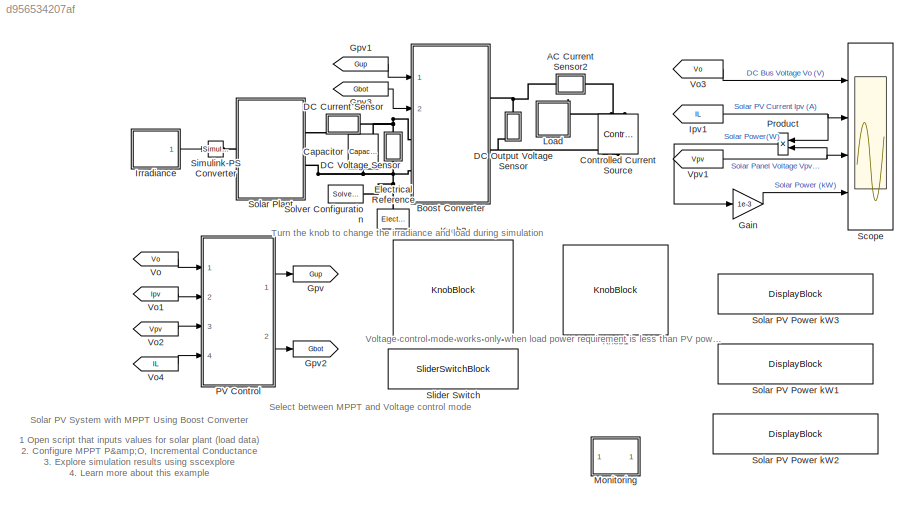
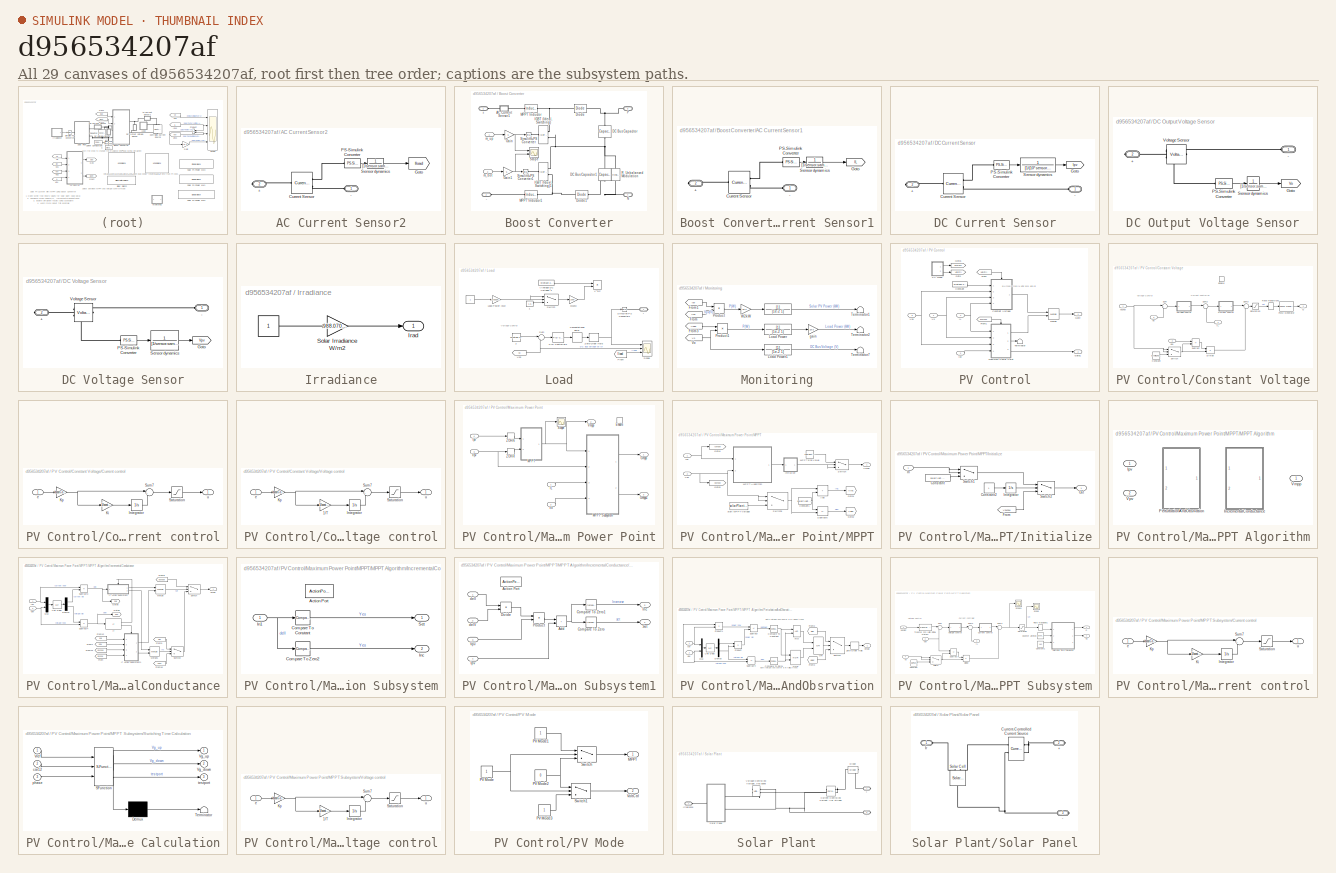
[diagram: thumbnail index - all 29 canvases of the model, root first then tree order]
MODEL slx_d956534207af
KIND model
CONFIG AbsTol = 1e-3
CONFIG EnableMultiTasking = off
CONFIG FixedStep = 1/SolverSamplingFreq
CONFIG MaxStep = 1/(50*solarPlant.converterSwitchingFrequency)
CONFIG MinStep = auto
CONFIG PreLoadFcn = run('ThreeLevel_BoostData');
CONFIG RelTol = 1e-3
CONFIG SampleTimeConstraint = Unconstrained
CONFIG SolverName = FixedStepAuto
CONFIG StartTime = 0.0
CONFIG StopFcn = ee_addSimlogTimeStamp(bdroot)
CONFIG StopTime = simulation.timeSim
BLOCK [SubSystem] AC Current Sensor2
  NameLocation = top
  Ports = [0, 0, 0, 0, 0, 1, 1]
  RequestExecContextInheritance = off
BLOCK [PMIOPort] AC Current Sensor2/+
  Port = 2
  Side = Right
BLOCK [PMIOPort] AC Current Sensor2/-
  Side = Left
BLOCK [Reference] AC Current Sensor2/Current Sensor  REF=fl_lib/Electrical/Electrical Sensors/Current Sensor
  Ports = [0, 0, 0, 0, 0, 1, 2]
  SourceBlock = fl_lib/Electrical/Electrical Sensors/Current Sensor
  SourceProductName = Foundation Library
  SourceType = Current Sensor
BLOCK [Goto] AC Current Sensor2/Goto
  GotoTag = Iload
  TagVisibility = global
BLOCK [Reference] AC Current Sensor2/PS-Simulink Converter  REF=nesl_utility/PS-Simulink
Converter
  Ports = [0, 1, 0, 0, 0, 1]
  SourceBlock = nesl_utility/PS-Simulink\nConverter
  SourceProductName = Utilities
  SourceType = PS-Simulink\nConverter
BLOCK [TransferFcn] AC Current Sensor2/Sensor dynamics
  Denominator = [1/sensor.samplingFreq 1]
  Numerator = 1
BLOCK [SubSystem] Boost Converter
  Ports = [2, 0, 0, 0, 0, 2, 2]
  RequestExecContextInheritance = off
  VariantControl = boostCircuit == 1
BLOCK [PMIOPort] Boost Converter/+
  Side = Left
BLOCK [PMIOPort] Boost Converter/-
  Port = 2
  Side = Left
BLOCK [SubSystem] Boost Converter/AC Current Sensor1
  NameLocation = top
  Ports = [0, 0, 0, 0, 0, 1, 1]
  RequestExecContextInheritance = off
BLOCK [PMIOPort] Boost Converter/AC Current Sensor1/+
  Port = 2
  Side = Right
BLOCK [PMIOPort] Boost Converter/AC Current Sensor1/-
  Side = Left
BLOCK [Reference] Boost Converter/AC Current Sensor1/Current Sensor  REF=fl_lib/Electrical/Electrical Sensors/Current Sensor
  Ports = [0, 0, 0, 0, 0, 1, 2]
  SourceBlock = fl_lib/Electrical/Electrical Sensors/Current Sensor
  SourceProductName = Foundation Library
  SourceType = Current Sensor
BLOCK [Goto] Boost Converter/AC Current Sensor1/Goto
  GotoTag = IL
  TagVisibility = global
BLOCK [Reference] Boost Converter/AC Current Sensor1/PS-Simulink Converter  REF=nesl_utility/PS-Simulink
Converter
  Ports = [0, 1, 0, 0, 0, 1]
  SourceBlock = nesl_utility/PS-Simulink\nConverter
  SourceProductName = Utilities
  SourceType = PS-Simulink\nConverter
BLOCK [TransferFcn] Boost Converter/AC Current Sensor1/Sensor dynamics
  Denominator = [1/sensor.samplingFreq 1]
  Numerator = 1
BLOCK [Reference] Boost Converter/DC Bus Capacitor  REF=fl_lib/Electrical/Electrical Elements/Capacitor
  NameLocation = left
  Ports = [0, 0, 0, 0, 0, 1, 1]
  SourceBlock = fl_lib/Electrical/Electrical Elements/Capacitor
  SourceProductName = Foundation Library
  SourceType = Capacitor
BLOCK [Reference] Boost Converter/DC Bus Capacitor1  REF=fl_lib/Electrical/Electrical Elements/Capacitor
  NameLocation = left
  Ports = [0, 0, 0, 0, 0, 1, 1]
  SourceBlock = fl_lib/Electrical/Electrical Elements/Capacitor
  SourceProductName = Foundation Library
  SourceType = Capacitor
BLOCK [Reference] Boost Converter/Diode  REF=fl_lib/Electrical/Electrical Elements/Diode
  Ports = [0, 0, 0, 0, 0, 1, 1]
  SourceBlock = fl_lib/Electrical/Electrical Elements/Diode
  SourceProductName = Foundation Library
  SourceType = Diode
BLOCK [Reference] Boost Converter/Diode1  REF=fl_lib/Electrical/Electrical Elements/Diode
  Ports = [0, 0, 0, 0, 0, 1, 1]
  SourceBlock = fl_lib/Electrical/Electrical Elements/Diode
  SourceProductName = Foundation Library
  SourceType = Diode
BLOCK [Gain] Boost Converter/Gain
  Gain = 5
BLOCK [Gain] Boost Converter/Gain1
  Gain = 5
BLOCK [Reference] Boost Converter/IGBT (Ideal, Switching)  REF=ee_lib/Semiconductors &
Converters/IGBT
(Ideal,
Switching)
  Ports = [0, 0, 0, 0, 0, 1, 2]
  SourceBlock = ee_lib/Semiconductors &\nConverters/IGBT\n(Ideal,\nSwitching)
  SourceProductBaseCode = PS
  SourceType = IGBT\n(Ideal,\nSwitching)
BLOCK [Reference] Boost Converter/IGBT (Ideal, Switching)1  REF=ee_lib/Semiconductors &
Converters/IGBT
(Ideal,
Switching)
  Ports = [0, 0, 0, 0, 0, 1, 2]
  SourceBlock = ee_lib/Semiconductors &\nConverters/IGBT\n(Ideal,\nSwitching)
  SourceProductName = Electrical
  SourceType = IGBT\n(Ideal,\nSwitching)
BLOCK [Reference] Boost Converter/MPPT Inductor  REF=ee_lib/Passive/Inductor
  Ports = [0, 0, 0, 0, 0, 1, 1]
  SourceBlock = ee_lib/Passive/Inductor
  SourceProductName = Electrical
  SourceType = Inductor
BLOCK [Reference] Boost Converter/MPPT Inductor1  REF=ee_lib/Passive/Inductor
  Ports = [0, 0, 0, 0, 0, 1, 1]
  SourceBlock = ee_lib/Passive/Inductor
  SourceProductName = Electrical
  SourceType = Inductor
BLOCK [PMIOPort] Boost Converter/N
  Port = 4
  Side = Right
BLOCK [PMIOPort] Boost Converter/P
  Port = 3
  Side = Right
BLOCK [Reference] Boost Converter/R_Unbalanced Modulation  REF=fl_lib/Electrical/Electrical Elements/Resistor
  NameLocation = right
  Ports = [0, 0, 0, 0, 0, 1, 1]
  SourceBlock = fl_lib/Electrical/Electrical Elements/Resistor
  SourceProductBaseCode = SS
  SourceType = Resistor
BLOCK [Scope] Boost Converter/Scope
  Floating = off
  NumInputPorts = 2
  Ports = [2]
  ScopeSpecificationString = Simulink.scopes.TimeScopeBlockCfg('CurrentConfiguration', extmgr.ConfigurationSet(extmgr.Configuration('Core','General UI',true),extmgr.Configuration('Core','Source UI',true),extmgr.Configuration('Sources','WiredSimulink',true,'DataLoggingVariableName','ScopeData1'),extmgr.Configuration('Visuals','Time Domain',true,'SerializedDisplays',{struct('MinYLimReal','-0.55166','MaxYLimReal','5.48477','YLab...<+1458ch>
BLOCK [Reference] Boost Converter/Simulink-PS Converter  REF=nesl_utility/Simulink-PS
Converter
  Ports = [1, 0, 0, 0, 0, 0, 1]
  SourceBlock = nesl_utility/Simulink-PS\nConverter
  SourceProductName = Utilities
  SourceType = Simulink-PS\nConverter
BLOCK [Reference] Boost Converter/Simulink-PS Converter1  REF=nesl_utility/Simulink-PS
Converter
  Ports = [1, 0, 0, 0, 0, 0, 1]
  SourceBlock = nesl_utility/Simulink-PS\nConverter
  SourceProductName = Utilities
  SourceType = Simulink-PS\nConverter
BLOCK [Inport] Boost Converter/m_bot
  Port = 2
BLOCK [Inport] Boost Converter/m_up
BLOCK [Reference] Capacitor  REF=fl_lib/Electrical/Electrical Elements/Capacitor
  NameLocation = left
  Ports = [0, 0, 0, 0, 0, 1, 1]
  SourceBlock = fl_lib/Electrical/Electrical Elements/Capacitor
  SourceProductBaseCode = SS
  SourceType = Capacitor
BLOCK [Reference] Controlled Current Source  REF=fl_lib/Electrical/Electrical Sources/Controlled Current
Source
  NameLocation = right
  Ports = [0, 0, 0, 0, 0, 1, 2]
  SourceBlock = fl_lib/Electrical/Electrical Sources/Controlled Current\nSource
  SourceProductBaseCode = SS
  SourceType = Controlled Current\nSource
BLOCK [SubSystem] DC Current Sensor
  Ports = [0, 0, 0, 0, 0, 1, 1]
  RequestExecContextInheritance = off
BLOCK [PMIOPort] DC Current Sensor/+
  Port = 2
  Side = Right
BLOCK [PMIOPort] DC Current Sensor/-
  Side = Left
BLOCK [Reference] DC Current Sensor/Current Sensor  REF=fl_lib/Electrical/Electrical Sensors/Current Sensor
  Ports = [0, 0, 0, 0, 0, 1, 2]
  SourceBlock = fl_lib/Electrical/Electrical Sensors/Current Sensor
  SourceProductName = Foundation Library
  SourceType = Current Sensor
BLOCK [Goto] DC Current Sensor/Goto
  GotoTag = Ipv
  TagVisibility = global
BLOCK [Reference] DC Current Sensor/PS-Simulink Converter  REF=nesl_utility/PS-Simulink
Converter
  Ports = [0, 1, 0, 0, 0, 1]
  SourceBlock = nesl_utility/PS-Simulink\nConverter
  SourceProductName = Utilities
  SourceType = PS-Simulink\nConverter
BLOCK [TransferFcn] DC Current Sensor/Sensor dynamics
  Denominator = [1/(10*sensor.samplingFreq) 1]
  Numerator = 1
BLOCK [SubSystem] DC Output Voltage Sensor
  NameLocation = left
  Ports = [0, 0, 0, 0, 0, 1, 1]
  RequestExecContextInheritance = off
BLOCK [PMIOPort] DC Output Voltage Sensor/+
  Port = 2
  Side = Right
BLOCK [PMIOPort] DC Output Voltage Sensor/-
  Side = Left
BLOCK [Goto] DC Output Voltage Sensor/Goto
  GotoTag = Vo
  TagVisibility = global
BLOCK [Reference] DC Output Voltage Sensor/PS-Simulink Converter  REF=nesl_utility/PS-Simulink
Converter
  Ports = [0, 1, 0, 0, 0, 1]
  SourceBlock = nesl_utility/PS-Simulink\nConverter
  SourceProductName = Utilities
  SourceType = PS-Simulink\nConverter
BLOCK [TransferFcn] DC Output Voltage Sensor/Sensor dynamics
  Denominator = [1/sensor.samplingFreq 1]
  Numerator = 1
BLOCK [Reference] DC Output Voltage Sensor/Voltage Sensor  REF=fl_lib/Electrical/Electrical Sensors/Voltage Sensor
  Ports = [0, 0, 0, 0, 0, 1, 2]
  SourceBlock = fl_lib/Electrical/Electrical Sensors/Voltage Sensor
  SourceProductName = Foundation Library
  SourceType = Voltage Sensor
BLOCK [SubSystem] DC Voltage Sensor
  NameLocation = left
  Ports = [0, 0, 0, 0, 0, 1, 1]
  RequestExecContextInheritance = off
BLOCK [PMIOPort] DC Voltage Sensor/+
  Port = 2
  Side = Right
BLOCK [PMIOPort] DC Voltage Sensor/-
  Side = Left
BLOCK [Goto] DC Voltage Sensor/Goto
  GotoTag = Vpv
  TagVisibility = global
BLOCK [Reference] DC Voltage Sensor/PS-Simulink Converter  REF=nesl_utility/PS-Simulink
Converter
  Ports = [0, 1, 0, 0, 0, 1]
  SourceBlock = nesl_utility/PS-Simulink\nConverter
  SourceProductName = Utilities
  SourceType = PS-Simulink\nConverter
BLOCK [TransferFcn] DC Voltage Sensor/Sensor dynamics
  Denominator = [1/sensor.samplingFreq 1]
  Numerator = 1
BLOCK [Reference] DC Voltage Sensor/Voltage Sensor  REF=fl_lib/Electrical/Electrical Sensors/Voltage Sensor
  Ports = [0, 0, 0, 0, 0, 1, 2]
  SourceBlock = fl_lib/Electrical/Electrical Sensors/Voltage Sensor
  SourceProductName = Foundation Library
  SourceType = Voltage Sensor
BLOCK [Reference] Electrical Reference  REF=fl_lib/Electrical/Electrical Elements/Electrical Reference
  NameLocation = left
  Ports = [0, 0, 0, 0, 0, 1]
  SourceBlock = fl_lib/Electrical/Electrical Elements/Electrical Reference
  SourceProductName = Foundation Library
  SourceType = Electrical Reference
BLOCK [Gain] Gain
  Gain = 1e-3
BLOCK [Goto] Gpv
  GotoTag = Gup
  TagVisibility = global
BLOCK [From] Gpv1
  GotoTag = Gup
  TagVisibility = global
BLOCK [Goto] Gpv2
  GotoTag = Gbot
  TagVisibility = global
BLOCK [From] Gpv3
  GotoTag = Gbot
  TagVisibility = global
BLOCK [From] Ipv1
  GotoTag = IL
  TagVisibility = global
BLOCK [SubSystem] Irradiance
  Ports = [0, 1]
  RequestExecContextInheritance = off
BLOCK [Constant] Irradiance/ 
BLOCK [Outport] Irradiance/Irad
BLOCK [Gain] Irradiance/Solar Irradiance W//m2
  Gain = 988.0703074137369
BLOCK [KnobBlock] Knob1
  ScaleMax = 2
  ScaleMin = 0.1
  TickInterval = 0.2
BLOCK [KnobBlock] Knob2
  ScaleMax = 1000
  ScaleMin = 150
BLOCK [SubSystem] Load
  Ports = [0, 0, 0, 0, 0, 0, 1]
  RequestExecContextInheritance = off
BLOCK [Constant] Load/ 
BLOCK [Constant] Load/ (Average DC Voltage)^2
  Value = dcVoltage.avgDCVoltage*dcVoltage.avgDCVoltage
BLOCK [Constant] Load/ 1
  Value = 1.5
BLOCK [Constant] Load/ 2
  Value = dcVoltage.avgDCVoltage
BLOCK [Delay] Load/Computational delay
  DelayLength = 1
  InputPortMap = u0
  Ports = [1, 1]
BLOCK [From] Load/From
  GotoTag = Iload
  TagVisibility = global
BLOCK [PMIOPort] Load/I
  Side = Right
BLOCK [Gain] Load/Load Power (kW)
  Gain = 1.688857025146485
BLOCK [Reference] Load/PID Controller1  REF=pid_lib/PID Controller
  Ports = [1, 1]
  SourceBlock = pid_lib/PID Controller
  SourceProductBaseCode = SL
  SourceType = PID 1dof
BLOCK [Scope] Load/Scope
  Floating = off
  NumInputPorts = 3
  Ports = [3]
  ScopeSpecificationString = Simulink.scopes.TimeScopeBlockCfg('CurrentConfiguration', extmgr.ConfigurationSet(extmgr.Configuration('Core','General UI',true),extmgr.Configuration('Core','Source UI',true),extmgr.Configuration('Sources','WiredSimulink',true,'DataLoggingVariableName','ScopeData1'),extmgr.Configuration('Visuals','Time Domain',true,'SerializedDisplays',{struct('MinYLimReal','-2.5','MaxYLimReal','22.5','YLabelReal'...<+2831ch>
BLOCK [Reference] Load/Simulink-PS Converter1  REF=nesl_utility/Simulink-PS
Converter
  Ports = [1, 0, 0, 0, 0, 0, 1]
  SourceBlock = nesl_utility/Simulink-PS\nConverter
  SourceProductName = Utilities
  SourceType = Simulink-PS\nConverter
BLOCK [Sum] Load/Sum
  Inputs = |-+
  Ports = [2, 1]
BLOCK [Switch] Load/Switch
  Criteria = u2 > Threshold
  InputSameDT = off
  SaturateOnIntegerOverflow = off
BLOCK [Product] Load/V^2//P
  Inputs = */
  Ports = [2, 1]
BLOCK [From] Load/Vo3
  GotoTag = Vo
  TagVisibility = global
BLOCK [ZeroOrderHold] Load/Zero-Order Hold
  SampleTime = -1
BLOCK [Gain] Load/kW2W
  Gain = 1000
BLOCK [SubSystem] Monitoring
  Ports = []
  RequestExecContextInheritance = off
BLOCK [TransferFcn] Monitoring/  
  Denominator = [1e-2 1]
BLOCK [From] Monitoring/From
  GotoTag = Vpv
  TagVisibility = global
BLOCK [From] Monitoring/From1
  GotoTag = Ipv
  TagVisibility = global
BLOCK [From] Monitoring/From3
  GotoTag = Iload
  TagVisibility = global
BLOCK [TransferFcn] Monitoring/Load Power
  Denominator = [1e-2 1]
BLOCK [TransferFcn] Monitoring/Load Power1
  Denominator = [1e-2 1]
BLOCK [Product] Monitoring/Product
  Ports = [2, 1]
BLOCK [Product] Monitoring/Product1
  Ports = [2, 1]
BLOCK [Terminator] Monitoring/Terminator1
BLOCK [Terminator] Monitoring/Terminator2
BLOCK [Terminator] Monitoring/Terminator7
BLOCK [From] Monitoring/Vo
  GotoTag = Vo
  TagVisibility = global
BLOCK [Gain] Monitoring/W2kW
  Gain = 1e-3
BLOCK [Gain] Monitoring/gain
  Gain = 1e-3
BLOCK [SubSystem] PV Control
  Ports = [4, 2]
  RequestExecContextInheritance = off
BLOCK [Constant] PV Control/Constant
  Value = dcVoltage.avgDCVoltage
BLOCK [SubSystem] PV Control/Constant Voltage
  Ports = [4, 1, 1]
  RequestExecContextInheritance = off
BLOCK [Constant] PV Control/Constant Voltage/Constant
  Value = dcVoltage.avgDCVoltage
BLOCK [SubSystem] PV Control/Constant Voltage/Current control
  Ports = [1, 1]
  RequestExecContextInheritance = off
BLOCK [Integrator] PV Control/Constant Voltage/Current control/Integrator
  LimitOutput = on
  LowerSaturationLimit = -1.5
  Ports = [1, 1]
  UpperSaturationLimit = 1.5
BLOCK [Gain] PV Control/Constant Voltage/Current control/Ki
  Gain = 1/boostController.mppCurrentZeroTimeConst
BLOCK [Gain] PV Control/Constant Voltage/Current control/Kp
  Gain = boostController.mppCurrentGain
BLOCK [Saturate] PV Control/Constant Voltage/Current control/Saturation
  LowerLimit = -1.5
  UpperLimit = 1.5
BLOCK [Sum] PV Control/Constant Voltage/Current control/Sum7
  Inputs = |++
  Ports = [2, 1]
BLOCK [Inport] PV Control/Constant Voltage/Current control/e
BLOCK [Outport] PV Control/Constant Voltage/Current control/u
  VectorParamsAs1DForOutWhenUnconnected = off
BLOCK [Product] PV Control/Constant Voltage/Divide
  Inputs = */
  Ports = [2, 1]
BLOCK [EnablePort] PV Control/Constant Voltage/Enable
  Ports = []
  StatesWhenEnabling = reset
BLOCK [Outport] PV Control/Constant Voltage/G
BLOCK [Inport] PV Control/Constant Voltage/IL
  NameLocation = top
  Port = 4
BLOCK [Reference] PV Control/Constant Voltage/PWM Generator  REF=eePwmGenerator/PWM Generator
  Ports = [1, 1]
  SourceBlock = eePwmGenerator/PWM Generator
  SourceProductBaseCode = PS
  SourceType = PWM Generator
BLOCK [RateTransition] PV Control/Constant Voltage/Rate Transition1
  OutPortSampleTime = 1/(10*solarPlant.converterSwitchingFrequency)
BLOCK [Saturate] PV Control/Constant Voltage/Saturation
  LowerLimit = 0
  UpperLimit = 1
BLOCK [Sum] PV Control/Constant Voltage/Subtract
  IconShape = rectangular
  Inputs = +-
  Ports = [2, 1]
BLOCK [Sum] PV Control/Constant Voltage/Sum
  Inputs = |+-
  Ports = [2, 1]
BLOCK [Sum] PV Control/Constant Voltage/Sum2
  Inputs = |+-
  Ports = [2, 1]
BLOCK [Sum] PV Control/Constant Voltage/Sum3
  Inputs = |+-
  Ports = [2, 1]
BLOCK [Switch] PV Control/Constant Voltage/Switch
  Criteria = u2 > Threshold
  InputSameDT = off
  SaturateOnIntegerOverflow = off
  Threshold = dcVoltage.avgDCVoltage*0.7
BLOCK [Inport] PV Control/Constant Voltage/Vconst
BLOCK [Inport] PV Control/Constant Voltage/Vo 
  Port = 3
BLOCK [SubSystem] PV Control/Constant Voltage/Voltage control
  Ports = [1, 1]
  RequestExecContextInheritance = off
BLOCK [Gain] PV Control/Constant Voltage/Voltage control/1//T
  Gain = 1/boostController.mppVoltageZeroTimeConst
BLOCK [Integrator] PV Control/Constant Voltage/Voltage control/Integrator
  LimitOutput = on
  LowerSaturationLimit = boostController.mppVoltageLoopMin
  Ports = [1, 1]
  UpperSaturationLimit = boostController.mppVoltageLoopMax
BLOCK [Gain] PV Control/Constant Voltage/Voltage control/Kp
  Gain = boostController.mppVoltageGain
BLOCK [Saturate] PV Control/Constant Voltage/Voltage control/Saturation
  LowerLimit = boostController.mppVoltageLoopMin
  UpperLimit = boostController.mppVoltageLoopMax
BLOCK [Sum] PV Control/Constant Voltage/Voltage control/Sum7
  Inputs = |++
  Ports = [2, 1]
BLOCK [Inport] PV Control/Constant Voltage/Voltage control/e
BLOCK [Outport] PV Control/Constant Voltage/Voltage control/u
  VectorParamsAs1DForOutWhenUnconnected = off
BLOCK [Inport] PV Control/Constant Voltage/Vpv
  Port = 2
BLOCK [From] PV Control/From
  GotoTag = VoltCtrl
BLOCK [From] PV Control/From1
  GotoTag = pvMPPT
BLOCK [Outport] PV Control/Gate
BLOCK [Outport] PV Control/Gate1
  Port = 2
BLOCK [Goto] PV Control/Goto
  GotoTag = VoltCtrl
BLOCK [Goto] PV Control/Goto1
  GotoTag = pvMPPT
BLOCK [Inport] PV Control/IL
  Port = 4
BLOCK [Inport] PV Control/Ipv
  Port = 2
BLOCK [SubSystem] PV Control/Maximum Power Point
  Ports = [4, 3, 1]
  RequestExecContextInheritance = off
BLOCK [EnablePort] PV Control/Maximum Power Point/Enable
  Ports = []
  StatesWhenEnabling = reset
BLOCK [Outport] PV Control/Maximum Power Point/Gmpp
BLOCK [Outport] PV Control/Maximum Power Point/Gmpp1
  Port = 3
BLOCK [Inport] PV Control/Maximum Power Point/IL 
BLOCK [Inport] PV Control/Maximum Power Point/Ipv
  Port = 4
BLOCK [SubSystem] PV Control/Maximum Power Point/MPPT
  Ports = [2, 1]
  RequestExecContextInheritance = off
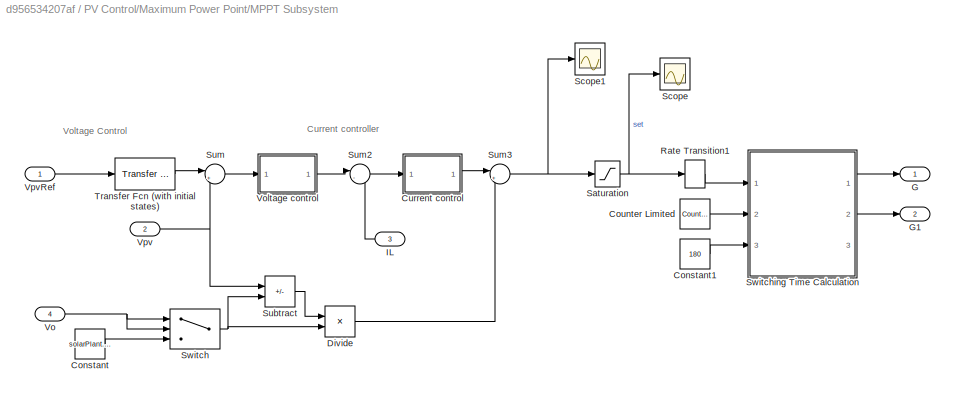
BLOCK [SubSystem] PV Control/Maximum Power Point/MPPT Subsystem
  Ports = [4, 2]
  RequestExecContextInheritance = off
  TreatAsAtomicUnit = on
BLOCK [Constant] PV Control/Maximum Power Point/MPPT Subsystem/Constant
  Value = solarPlant.startMPPTValue
BLOCK [Constant] PV Control/Maximum Power Point/MPPT Subsystem/Constant1
  Value = 180
BLOCK [Reference] PV Control/Maximum Power Point/MPPT Subsystem/Counter Limited  REF=simulink/Sources/Counter
Limited
  Ports = [0, 1]
  SourceBlock = simulink/Sources/Counter\nLimited
  SourceProductBaseCode = SL
  SourceType = Counter Limited
BLOCK [SubSystem] PV Control/Maximum Power Point/MPPT Subsystem/Current control
  Ports = [1, 1]
  RequestExecContextInheritance = off
BLOCK [Integrator] PV Control/Maximum Power Point/MPPT Subsystem/Current control/Integrator
  InitialCondition = 1
  LimitOutput = on
  LowerSaturationLimit = -0.5
  Ports = [1, 1]
  UpperSaturationLimit = 1
BLOCK [Gain] PV Control/Maximum Power Point/MPPT Subsystem/Current control/Ki
  Gain = 1/boostController.mppCurrentZeroTimeConst
BLOCK [Gain] PV Control/Maximum Power Point/MPPT Subsystem/Current control/Kp
  Gain = boostController.mppCurrentGain
BLOCK [Saturate] PV Control/Maximum Power Point/MPPT Subsystem/Current control/Saturation
  LowerLimit = -0.3
  UpperLimit = 1
BLOCK [Sum] PV Control/Maximum Power Point/MPPT Subsystem/Current control/Sum7
  Inputs = |++
  Ports = [2, 1]
BLOCK [Inport] PV Control/Maximum Power Point/MPPT Subsystem/Current control/e
BLOCK [Outport] PV Control/Maximum Power Point/MPPT Subsystem/Current control/u
  VectorParamsAs1DForOutWhenUnconnected = off
BLOCK [Product] PV Control/Maximum Power Point/MPPT Subsystem/Divide
  Inputs = */
  Ports = [2, 1]
BLOCK [Outport] PV Control/Maximum Power Point/MPPT Subsystem/G
BLOCK [Outport] PV Control/Maximum Power Point/MPPT Subsystem/G1
  Port = 2
BLOCK [Inport] PV Control/Maximum Power Point/MPPT Subsystem/IL
  NameLocation = top
  Port = 3
BLOCK [RateTransition] PV Control/Maximum Power Point/MPPT Subsystem/Rate Transition1
  OutPortSampleTime = 1/(10*solarPlant.converterSwitchingFrequency)
BLOCK [Saturate] PV Control/Maximum Power Point/MPPT Subsystem/Saturation
  LowerLimit = 0
  UpperLimit = 1
BLOCK [Scope] PV Control/Maximum Power Point/MPPT Subsystem/Scope
  Floating = off
  NumInputPorts = 1
  Ports = [1]
  ScopeSpecificationString = Simulink.scopes.TimeScopeBlockCfg('CurrentConfiguration', extmgr.ConfigurationSet(extmgr.Configuration('Core','General UI',true),extmgr.Configuration('Core','Source UI',true),extmgr.Configuration('Sources','WiredSimulink',true,'DataLoggingVariableName','ScopeData2'),extmgr.Configuration('Visuals','Time Domain',true,'SerializedDisplays',{struct('MinYLimReal','-0.00491','MaxYLimReal','0.12452','YLab...<+1406ch>
BLOCK [Scope] PV Control/Maximum Power Point/MPPT Subsystem/Scope1
  Floating = off
  NumInputPorts = 1
  Ports = [1]
  ScopeSpecificationString = Simulink.scopes.TimeScopeBlockCfg('CurrentConfiguration', extmgr.ConfigurationSet(extmgr.Configuration('Core','General UI',true),extmgr.Configuration('Core','Source UI',true),extmgr.Configuration('Sources','WiredSimulink',true,'DataLoggingVariableName','ScopeData3'),extmgr.Configuration('Visuals','Time Domain',true,'SerializedDisplays',{struct('MinYLimReal','-0.24149','MaxYLimReal','1.45418','YLab...<+1407ch>
BLOCK [Sum] PV Control/Maximum Power Point/MPPT Subsystem/Subtract
  IconShape = rectangular
  Inputs = -+
  Ports = [2, 1]
BLOCK [Sum] PV Control/Maximum Power Point/MPPT Subsystem/Sum
  Inputs = |+-
  Ports = [2, 1]
BLOCK [Sum] PV Control/Maximum Power Point/MPPT Subsystem/Sum2
  Inputs = |--
  Ports = [2, 1]
BLOCK [Sum] PV Control/Maximum Power Point/MPPT Subsystem/Sum3
  Inputs = |++
  Ports = [2, 1]
BLOCK [Switch] PV Control/Maximum Power Point/MPPT Subsystem/Switch
  Criteria = u2 > Threshold
  InputSameDT = off
  SaturateOnIntegerOverflow = off
  Threshold = dcVoltage.avgDCVoltage*0.7
BLOCK [SubSystem] PV Control/Maximum Power Point/MPPT Subsystem/Switching Time Calculation
  ErrorFcn = Stateflow.Translate.translate
  PermitHierarchicalResolution = ExplicitOnly
  Ports = [3, 3]
  RequestExecContextInheritance = off
  SFBlockType = MATLAB Function
  TreatAsAtomicUnit = on
BLOCK [Demux] PV Control/Maximum Power Point/MPPT Subsystem/Switching Time Calculation/ Demux 
  Outputs = 1
  Ports = [1, 1]
BLOCK [S-Function] PV Control/Maximum Power Point/MPPT Subsystem/Switching Time Calculation/ SFunction 
  EnableBusSupport = on
  FunctionName = sf_sfun
  PortCounts = [3 4]
  Ports = [3, 4]
  SFcnIsStateOwnerBlock = off
  SFunctionDeploymentMode = off
  Tag = Stateflow S-Function 14
BLOCK [Terminator] PV Control/Maximum Power Point/MPPT Subsystem/Switching Time Calculation/ Terminator 
BLOCK [Outport] PV Control/Maximum Power Point/MPPT Subsystem/Switching Time Calculation/Vg_down
  Port = 2
BLOCK [Outport] PV Control/Maximum Power Point/MPPT Subsystem/Switching Time Calculation/Vg_up
  VectorParamsAs1DForOutWhenUnconnected = off
BLOCK [Inport] PV Control/Maximum Power Point/MPPT Subsystem/Switching Time Calculation/Vref
BLOCK [Inport] PV Control/Maximum Power Point/MPPT Subsystem/Switching Time Calculation/car12
  Port = 2
BLOCK [Inport] PV Control/Maximum Power Point/MPPT Subsystem/Switching Time Calculation/phase
  Port = 3
BLOCK [Outport] PV Control/Maximum Power Point/MPPT Subsystem/Switching Time Calculation/testport
  Port = 3
BLOCK [Reference] PV Control/Maximum Power Point/MPPT Subsystem/Transfer Fcn (with initial states)  REF=simulink_extras/Additional
Linear/Transfer Fcn
(with initial states)
  Ports = [1, 1]
  SourceBlock = simulink_extras/Additional\nLinear/Transfer Fcn\n(with initial states)
  SourceProductName = Simulink Extras
  SourceType = Transfer Function with Initial States
BLOCK [Inport] PV Control/Maximum Power Point/MPPT Subsystem/Vo 
  Port = 4
BLOCK [SubSystem] PV Control/Maximum Power Point/MPPT Subsystem/Voltage control
  Ports = [1, 1]
  RequestExecContextInheritance = off
BLOCK [Gain] PV Control/Maximum Power Point/MPPT Subsystem/Voltage control/1//T
  Gain = 1/boostController.mppVoltageZeroTimeConst
BLOCK [Integrator] PV Control/Maximum Power Point/MPPT Subsystem/Voltage control/Integrator
  LimitOutput = on
  LowerSaturationLimit = boostController.mppVoltageLoopMin
  Ports = [1, 1]
  UpperSaturationLimit = boostController.mppVoltageLoopMax
BLOCK [Gain] PV Control/Maximum Power Point/MPPT Subsystem/Voltage control/Kp
  Gain = boostController.mppVoltageGain
BLOCK [Saturate] PV Control/Maximum Power Point/MPPT Subsystem/Voltage control/Saturation
  LowerLimit = boostController.mppVoltageLoopMin
  UpperLimit = boostController.mppVoltageLoopMax
BLOCK [Sum] PV Control/Maximum Power Point/MPPT Subsystem/Voltage control/Sum7
  Inputs = |++
  Ports = [2, 1]
BLOCK [Inport] PV Control/Maximum Power Point/MPPT Subsystem/Voltage control/e
BLOCK [Outport] PV Control/Maximum Power Point/MPPT Subsystem/Voltage control/u
  VectorParamsAs1DForOutWhenUnconnected = off
BLOCK [Inport] PV Control/Maximum Power Point/MPPT Subsystem/Vpv
  Port = 2
BLOCK [Inport] PV Control/Maximum Power Point/MPPT Subsystem/VpvRef
BLOCK [Sum] PV Control/Maximum Power Point/MPPT/Add
  IconShape = rectangular
  Ports = [2, 1]
BLOCK [Constant] PV Control/Maximum Power Point/MPPT/Constant1
  Value = solarPlant.voltMPPT
BLOCK [Goto] PV Control/Maximum Power Point/MPPT/Goto1
  GotoTag = Vinc
  TagVisibility = global
BLOCK [Goto] PV Control/Maximum Power Point/MPPT/Goto2
  GotoTag = Vdec
  TagVisibility = global
BLOCK [Goto] PV Control/Maximum Power Point/MPPT/Goto3
  GotoTag = Vpvnow
  TagVisibility = global
BLOCK [Goto] PV Control/Maximum Power Point/MPPT/Goto4
  GotoTag = Ipvnow
  TagVisibility = global
BLOCK [SubSystem] PV Control/Maximum Power Point/MPPT/Initialize
  Ports = [1, 1]
  RequestExecContextInheritance = off
BLOCK [Constant] PV Control/Maximum Power Point/MPPT/Initialize/Constant
  Value = solarPlant.startMPPTValue
BLOCK [Constant] PV Control/Maximum Power Point/MPPT/Initialize/Constant2
BLOCK [From] PV Control/Maximum Power Point/MPPT/Initialize/From
  GotoTag = Vpvnow
  TagVisibility = global
BLOCK [Inport] PV Control/Maximum Power Point/MPPT/Initialize/In
BLOCK [Integrator] PV Control/Maximum Power Point/MPPT/Initialize/Integrator
  Ports = [1, 1]
BLOCK [Outport] PV Control/Maximum Power Point/MPPT/Initialize/Out
BLOCK [Switch] PV Control/Maximum Power Point/MPPT/Initialize/Switch1
  Criteria = u2 > Threshold
  InputSameDT = off
  SaturateOnIntegerOverflow = off
  Threshold = solarPlant.startMPPTValue
BLOCK [Switch] PV Control/Maximum Power Point/MPPT/Initialize/Switch2
  Criteria = u2 > Threshold
  InputSameDT = off
  SaturateOnIntegerOverflow = off
  Threshold = solarPlant.timeMPPT
BLOCK [Inport] PV Control/Maximum Power Point/MPPT/Ipv
BLOCK [SubSystem] PV Control/Maximum Power Point/MPPT/MPPT Algorithm
  Ports = [2, 1]
  RequestExecContextInheritance = off
  Variant = on
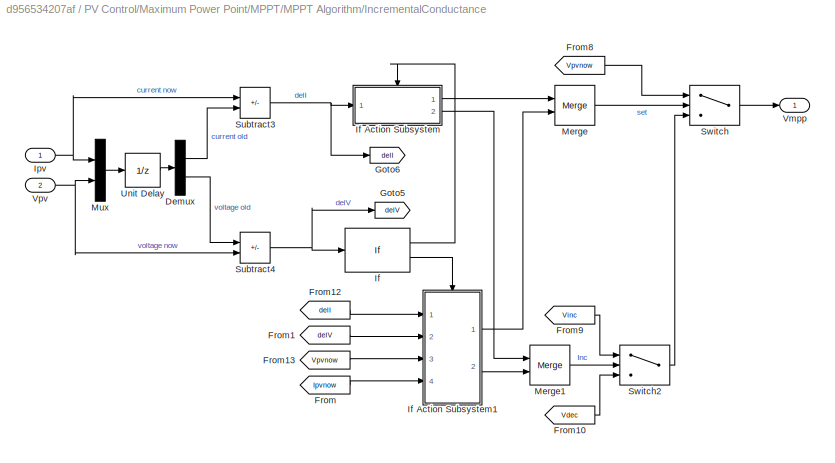
BLOCK [SubSystem] PV Control/Maximum Power Point/MPPT/MPPT Algorithm/IncrementalConductance
  Ports = [2, 1]
  RequestExecContextInheritance = off
  VariantControl = incrementalConductance
BLOCK [Demux] PV Control/Maximum Power Point/MPPT/MPPT Algorithm/IncrementalConductance/Demux
  Outputs = 2
  Ports = [1, 2]
BLOCK [From] PV Control/Maximum Power Point/MPPT/MPPT Algorithm/IncrementalConductance/From
  GotoTag = Ipvnow
  TagVisibility = global
BLOCK [From] PV Control/Maximum Power Point/MPPT/MPPT Algorithm/IncrementalConductance/From1
  GotoTag = delV
BLOCK [From] PV Control/Maximum Power Point/MPPT/MPPT Algorithm/IncrementalConductance/From10
  GotoTag = Vdec
  TagVisibility = global
BLOCK [From] PV Control/Maximum Power Point/MPPT/MPPT Algorithm/IncrementalConductance/From12
  GotoTag = delI
BLOCK [From] PV Control/Maximum Power Point/MPPT/MPPT Algorithm/IncrementalConductance/From13
  GotoTag = Vpvnow
  TagVisibility = global
BLOCK [From] PV Control/Maximum Power Point/MPPT/MPPT Algorithm/IncrementalConductance/From8
  GotoTag = Vpvnow
  TagVisibility = global
BLOCK [From] PV Control/Maximum Power Point/MPPT/MPPT Algorithm/IncrementalConductance/From9
  GotoTag = Vinc
  TagVisibility = global
BLOCK [Goto] PV Control/Maximum Power Point/MPPT/MPPT Algorithm/IncrementalConductance/Goto5
  GotoTag = delV
BLOCK [Goto] PV Control/Maximum Power Point/MPPT/MPPT Algorithm/IncrementalConductance/Goto6
  GotoTag = delI
BLOCK [If] PV Control/Maximum Power Point/MPPT/MPPT Algorithm/IncrementalConductance/If
  IfExpression = u1 == 0
  Ports = [1, 2]
BLOCK [SubSystem] PV Control/Maximum Power Point/MPPT/MPPT Algorithm/IncrementalConductance/If Action Subsystem
  Ports = [1, 2, 0, 0, 0, 0, 0, 1]
  RequestExecContextInheritance = off
  TreatAsAtomicUnit = on
BLOCK [ActionPort] PV Control/Maximum Power Point/MPPT/MPPT Algorithm/IncrementalConductance/If Action Subsystem/Action Port
  ActionPortLabel = if(u1 == 0)
BLOCK [Reference] PV Control/Maximum Power Point/MPPT/MPPT Algorithm/IncrementalConductance/If Action Subsystem/Compare To Constant  REF=simulink/Logic and Bit
Operations/Compare
To Constant
  Ports = [1, 1]
  SourceBlock = simulink/Logic and Bit\nOperations/Compare\nTo Constant
  SourceProductBaseCode = SL
  SourceType = Compare To Constant
BLOCK [Reference] PV Control/Maximum Power Point/MPPT/MPPT Algorithm/IncrementalConductance/If Action Subsystem/Compare To Zero2  REF=simulink/Logic and Bit
Operations/Compare
To Zero
  Ports = [1, 1]
  SourceBlock = simulink/Logic and Bit\nOperations/Compare\nTo Zero
  SourceProductBaseCode = SL
  SourceType = Compare To Zero
BLOCK [Inport] PV Control/Maximum Power Point/MPPT/MPPT Algorithm/IncrementalConductance/If Action Subsystem/In1
BLOCK [Outport] PV Control/Maximum Power Point/MPPT/MPPT Algorithm/IncrementalConductance/If Action Subsystem/Inc
  Port = 2
  VectorParamsAs1DForOutWhenUnconnected = off
BLOCK [Outport] PV Control/Maximum Power Point/MPPT/MPPT Algorithm/IncrementalConductance/If Action Subsystem/Set
  VectorParamsAs1DForOutWhenUnconnected = off
BLOCK [SubSystem] PV Control/Maximum Power Point/MPPT/MPPT Algorithm/IncrementalConductance/If Action Subsystem1
  Ports = [4, 2, 0, 0, 0, 0, 0, 1]
  RequestExecContextInheritance = off
  TreatAsAtomicUnit = on
BLOCK [ActionPort] PV Control/Maximum Power Point/MPPT/MPPT Algorithm/IncrementalConductance/If Action Subsystem1/Action Port
  ActionPortLabel = else
BLOCK [Sum] PV Control/Maximum Power Point/MPPT/MPPT Algorithm/IncrementalConductance/If Action Subsystem1/Add
  IconShape = rectangular
  Ports = [2, 1]
BLOCK [Reference] PV Control/Maximum Power Point/MPPT/MPPT Algorithm/IncrementalConductance/If Action Subsystem1/Compare To Zero  REF=simulink/Logic and Bit
Operations/Compare
To Zero
  Ports = [1, 1]
  SourceBlock = simulink/Logic and Bit\nOperations/Compare\nTo Zero
  SourceProductBaseCode = SL
  SourceType = Compare To Zero
BLOCK [Reference] PV Control/Maximum Power Point/MPPT/MPPT Algorithm/IncrementalConductance/If Action Subsystem1/Compare To Zero1  REF=simulink/Logic and Bit
Operations/Compare
To Zero
  Ports = [1, 1]
  SourceBlock = simulink/Logic and Bit\nOperations/Compare\nTo Zero
  SourceProductBaseCode = SL
  SourceType = Compare To Zero
BLOCK [Product] PV Control/Maximum Power Point/MPPT/MPPT Algorithm/IncrementalConductance/If Action Subsystem1/Divide
  Inputs = */
  Ports = [2, 1]
BLOCK [Outport] PV Control/Maximum Power Point/MPPT/MPPT Algorithm/IncrementalConductance/If Action Subsystem1/Inc
  Port = 2
  VectorParamsAs1DForOutWhenUnconnected = off
BLOCK [Inport] PV Control/Maximum Power Point/MPPT/MPPT Algorithm/IncrementalConductance/If Action Subsystem1/Ipv
  Port = 4
BLOCK [Product] PV Control/Maximum Power Point/MPPT/MPPT Algorithm/IncrementalConductance/If Action Subsystem1/Product
  Ports = [2, 1]
BLOCK [Outport] PV Control/Maximum Power Point/MPPT/MPPT Algorithm/IncrementalConductance/If Action Subsystem1/Set
  VectorParamsAs1DForOutWhenUnconnected = off
BLOCK [Inport] PV Control/Maximum Power Point/MPPT/MPPT Algorithm/IncrementalConductance/If Action Subsystem1/Vpv
  Port = 3
BLOCK [Inport] PV Control/Maximum Power Point/MPPT/MPPT Algorithm/IncrementalConductance/If Action Subsystem1/delI
BLOCK [Inport] PV Control/Maximum Power Point/MPPT/MPPT Algorithm/IncrementalConductance/If Action Subsystem1/delV
  Port = 2
BLOCK [Inport] PV Control/Maximum Power Point/MPPT/MPPT Algorithm/IncrementalConductance/Ipv
BLOCK [Merge] PV Control/Maximum Power Point/MPPT/MPPT Algorithm/IncrementalConductance/Merge
  Ports = [2, 1]
BLOCK [Merge] PV Control/Maximum Power Point/MPPT/MPPT Algorithm/IncrementalConductance/Merge1
  Ports = [2, 1]
BLOCK [Mux] PV Control/Maximum Power Point/MPPT/MPPT Algorithm/IncrementalConductance/Mux
  DisplayOption = bar
  Inputs = 2
  Ports = [2, 1]
BLOCK [Sum] PV Control/Maximum Power Point/MPPT/MPPT Algorithm/IncrementalConductance/Subtract3
  IconShape = rectangular
  Inputs = +-
  Ports = [2, 1]
BLOCK [Sum] PV Control/Maximum Power Point/MPPT/MPPT Algorithm/IncrementalConductance/Subtract4
  IconShape = rectangular
  Inputs = -+
  Ports = [2, 1]
BLOCK [Switch] PV Control/Maximum Power Point/MPPT/MPPT Algorithm/IncrementalConductance/Switch
  Criteria = u2 > Threshold
  InputSameDT = off
  SaturateOnIntegerOverflow = off
BLOCK [Switch] PV Control/Maximum Power Point/MPPT/MPPT Algorithm/IncrementalConductance/Switch2
  Criteria = u2 > Threshold
  InputSameDT = off
  SaturateOnIntegerOverflow = off
BLOCK [UnitDelay] PV Control/Maximum Power Point/MPPT/MPPT Algorithm/IncrementalConductance/Unit Delay
  HasFrameUpgradeWarning = on
  InitialCondition = solarPlant.startMPPTValue
  SampleTime = solarPlant.timeMPPT
BLOCK [Outport] PV Control/Maximum Power Point/MPPT/MPPT Algorithm/IncrementalConductance/Vmpp
  VectorParamsAs1DForOutWhenUnconnected = off
BLOCK [Inport] PV Control/Maximum Power Point/MPPT/MPPT Algorithm/IncrementalConductance/Vpv
  Port = 2
BLOCK [Inport] PV Control/Maximum Power Point/MPPT/MPPT Algorithm/Ipv
BLOCK [SubSystem] PV Control/Maximum Power Point/MPPT/MPPT Algorithm/PerturbationAndObsrvation
  Ports = [2, 1]
  RequestExecContextInheritance = off
  VariantControl = perturbationAndObservation
BLOCK [Logic] PV Control/Maximum Power Point/MPPT/MPPT Algorithm/PerturbationAndObsrvation/AND
  AllPortsSameDT = off
  IconShape = distinctive
  OutDataTypeStr = boolean
  Ports = [2, 1]
BLOCK [Reference] PV Control/Maximum Power Point/MPPT/MPPT Algorithm/PerturbationAndObsrvation/Compare To Constant  REF=simulink/Logic and Bit
Operations/Compare
To Constant
  Ports = [1, 1]
  SourceBlock = simulink/Logic and Bit\nOperations/Compare\nTo Constant
  SourceProductBaseCode = SL
  SourceType = Compare To Constant
BLOCK [Reference] PV Control/Maximum Power Point/MPPT/MPPT Algorithm/PerturbationAndObsrvation/Compare To Zero1  REF=simulink/Logic and Bit
Operations/Compare
To Zero
  Ports = [1, 1]
  SourceBlock = simulink/Logic and Bit\nOperations/Compare\nTo Zero
  SourceProductBaseCode = SL
  SourceType = Compare To Zero
BLOCK [Demux] PV Control/Maximum Power Point/MPPT/MPPT Algorithm/PerturbationAndObsrvation/Demux
  Outputs = 2
  Ports = [1, 2]
BLOCK [From] PV Control/Maximum Power Point/MPPT/MPPT Algorithm/PerturbationAndObsrvation/From2
  GotoTag = Vinc
  TagVisibility = global
BLOCK [From] PV Control/Maximum Power Point/MPPT/MPPT Algorithm/PerturbationAndObsrvation/From3
  GotoTag = Vdec
  TagVisibility = global
BLOCK [Inport] PV Control/Maximum Power Point/MPPT/MPPT Algorithm/PerturbationAndObsrvation/Ipv
BLOCK [Mux] PV Control/Maximum Power Point/MPPT/MPPT Algorithm/PerturbationAndObsrvation/Mux
  DisplayOption = bar
  Inputs = 2
  Ports = [2, 1]
BLOCK [Logic] PV Control/Maximum Power Point/MPPT/MPPT Algorithm/PerturbationAndObsrvation/NOR
  AllPortsSameDT = off
  IconShape = distinctive
  Operator = NOR
  OutDataTypeStr = boolean
  Ports = [2, 1]
BLOCK [Logic] PV Control/Maximum Power Point/MPPT/MPPT Algorithm/PerturbationAndObsrvation/OR
  AllPortsSameDT = off
  IconShape = distinctive
  Operator = OR
  OutDataTypeStr = boolean
  Ports = [2, 1]
BLOCK [Product] PV Control/Maximum Power Point/MPPT/MPPT Algorithm/PerturbationAndObsrvation/Product
  Ports = [2, 1]
BLOCK [Product] PV Control/Maximum Power Point/MPPT/MPPT Algorithm/PerturbationAndObsrvation/Product1
  Ports = [2, 1]
BLOCK [Sum] PV Control/Maximum Power Point/MPPT/MPPT Algorithm/PerturbationAndObsrvation/Subtract
  IconShape = rectangular
  Inputs = +-
  Ports = [2, 1]
BLOCK [Sum] PV Control/Maximum Power Point/MPPT/MPPT Algorithm/PerturbationAndObsrvation/Subtract4
  IconShape = rectangular
  Inputs = -+
  Ports = [2, 1]
BLOCK [Switch] PV Control/Maximum Power Point/MPPT/MPPT Algorithm/PerturbationAndObsrvation/Switch4
  Criteria = u2 ~= 0
  InputSameDT = off
  SaturateOnIntegerOverflow = off
BLOCK [UnitDelay] PV Control/Maximum Power Point/MPPT/MPPT Algorithm/PerturbationAndObsrvation/Unit Delay
  HasFrameUpgradeWarning = on
  InitialCondition = solarPlant.startMPPTValue
  SampleTime = solarPlant.timeMPPT
BLOCK [Outport] PV Control/Maximum Power Point/MPPT/MPPT Algorithm/PerturbationAndObsrvation/Vmpp
  NameLocation = top
  VectorParamsAs1DForOutWhenUnconnected = off
BLOCK [Inport] PV Control/Maximum Power Point/MPPT/MPPT Algorithm/PerturbationAndObsrvation/Vpv
  Port = 2
BLOCK [ZeroOrderHold] PV Control/Maximum Power Point/MPPT/MPPT Algorithm/PerturbationAndObsrvation/Zero-Order Hold
  SampleTime = solarPlant.timeMPPT
BLOCK [Outport] PV Control/Maximum Power Point/MPPT/MPPT Algorithm/Vmpp
  VectorParamsAs1DForOutWhenUnconnected = off
BLOCK [Inport] PV Control/Maximum Power Point/MPPT/MPPT Algorithm/Vpv
  Port = 2
BLOCK [Constant] PV Control/Maximum Power Point/MPPT/MPPT End Value
  Value = solarPlant.endMPPTValue
BLOCK [Sum] PV Control/Maximum Power Point/MPPT/Subtract5
  IconShape = rectangular
  Inputs = -+
  Ports = [2, 1]
BLOCK [Switch] PV Control/Maximum Power Point/MPPT/Switch
  InputSameDT = off
  SaturateOnIntegerOverflow = off
  Threshold = solarPlant.endMPPTValue
BLOCK [Switch] PV Control/Maximum Power Point/MPPT/Switch5
  Criteria = u2 > Threshold
  InputSameDT = off
  SaturateOnIntegerOverflow = off
  Threshold = solarPlant.startMPPTValue
BLOCK [Outport] PV Control/Maximum Power Point/MPPT/Vmpp
  NameLocation = top
  VectorParamsAs1DForOutWhenUnconnected = off
BLOCK [Inport] PV Control/Maximum Power Point/MPPT/Vpv
  Port = 2
BLOCK [Constant] PV Control/Maximum Power Point/MPPT/start MPPT Voltage
  Value = solarPlant.startMPPTValue
BLOCK [Scope] PV Control/Maximum Power Point/Scope
  Floating = off
  NumInputPorts = 1
  Ports = [1]
  ScopeSpecificationString = Simulink.scopes.TimeScopeBlockCfg('CurrentConfiguration', extmgr.ConfigurationSet(extmgr.Configuration('Core','General UI',true),extmgr.Configuration('Core','Source UI',true),extmgr.Configuration('Sources','WiredSimulink',true,'DataLoggingVariableName','ScopeData1'),extmgr.Configuration('Visuals','Time Domain',true,'SerializedDisplays',{struct('MinYLimReal','-146.02927','MaxYLimReal','1314.26342',...<+1434ch>
BLOCK [Outport] PV Control/Maximum Power Point/Vmpp
  Port = 2
BLOCK [Inport] PV Control/Maximum Power Point/Vo 
  Port = 2
BLOCK [Inport] PV Control/Maximum Power Point/Vpv
  Port = 3
BLOCK [ZeroOrderHold] PV Control/Maximum Power Point/ZOH//4
  SampleTime = solarPlant.timeMPPT
BLOCK [ZeroOrderHold] PV Control/Maximum Power Point/ZOH//6
  SampleTime = solarPlant.timeMPPT
BLOCK [Merge] PV Control/Merge
  Ports = [2, 1]
BLOCK [SubSystem] PV Control/PV Mode
  Ports = [0, 2]
  RequestExecContextInheritance = off
BLOCK [Outport] PV Control/PV Mode/MPPT
BLOCK [Constant] PV Control/PV Mode/PV Mode
BLOCK [Constant] PV Control/PV Mode/PV Mode1
BLOCK [Constant] PV Control/PV Mode/PV Mode2
  Value = 0
BLOCK [Constant] PV Control/PV Mode/PV Mode3
BLOCK [Switch] PV Control/PV Mode/Switch
  Criteria = u2 > Threshold
  InputSameDT = off
  SaturateOnIntegerOverflow = off
  Threshold = 0.5
BLOCK [Switch] PV Control/PV Mode/Switch1
  Criteria = u2 > Threshold
  InputSameDT = off
  SaturateOnIntegerOverflow = off
  Threshold = 0.5
BLOCK [Outport] PV Control/PV Mode/VoltCtrl
  Port = 2
BLOCK [Terminator] PV Control/Terminator
BLOCK [Inport] PV Control/Vo
BLOCK [Inport] PV Control/Vpv
  Port = 3
BLOCK [Product] Product
  NameLocation = top
  Ports = [2, 1]
BLOCK [Scope] Scope
  Floating = off
  NumInputPorts = 4
  Ports = [4]
  ScopeSpecificationString = Simulink.scopes.TimeScopeBlockCfg('CurrentConfiguration', extmgr.ConfigurationSet(extmgr.Configuration('Core','General UI',true),extmgr.Configuration('Core','Source UI',true),extmgr.Configuration('Sources','WiredSimulink',true,'DataLoggingVariableName','ScopeData1'),extmgr.Configuration('Visuals','Time Domain',true,'SerializedDisplays',{struct('MinYLimReal','-186.10301','MaxYLimReal','1674.92713',...<+3583ch>
BLOCK [Reference] Simulink-PS Converter  REF=nesl_utility/Simulink-PS
Converter
  Ports = [1, 0, 0, 0, 0, 0, 1]
  SourceBlock = nesl_utility/Simulink-PS\nConverter
  SourceProductName = Utilities
  SourceType = Simulink-PS\nConverter
BLOCK [SliderSwitchBlock] Slider Switch
BLOCK [DisplayBlock] Solar PV Power kW1
  Format = short
  Transparency = 1
BLOCK [DisplayBlock] Solar PV Power kW2
  Format = short
  Transparency = 1
BLOCK [DisplayBlock] Solar PV Power kW3
  Format = short
  Transparency = 1
BLOCK [SubSystem] Solar Plant
  Ports = [0, 0, 0, 0, 0, 1, 2]
  RequestExecContextInheritance = off
BLOCK [PMIOPort] Solar Plant/+
  Side = Right
BLOCK [PMIOPort] Solar Plant/-
  Port = 3
  Side = Right
BLOCK [Reference] Solar Plant/Current-Controlled Current Source- Scale panel current to Np parallel strings  REF=fl_lib/Electrical/Electrical Sources/Current-Controlled
Current Source
  Ports = [0, 0, 0, 0, 0, 2, 2]
  SourceBlock = fl_lib/Electrical/Electrical Sources/Current-Controlled\nCurrent Source
  SourceProductName = Foundation Library
  SourceType = Current-Controlled\nCurrent Source
BLOCK [Reference] Solar Plant/Diode  REF=ee_lib/Semiconductors &
Converters/Diode
  Ports = [0, 0, 0, 0, 0, 1, 1]
  SourceBlock = ee_lib/Semiconductors &\nConverters/Diode
  SourceProductBaseCode = PS
  SourceType = Diode
BLOCK [PMIOPort] Solar Plant/Irradiance
  Port = 2
  Side = Left
BLOCK [SubSystem] Solar Plant/Solar Panel
  Ports = [0, 0, 0, 0, 0, 1, 2]
  RequestExecContextInheritance = off
BLOCK [PMIOPort] Solar Plant/Solar Panel/+
  Port = 2
  Side = Right
BLOCK [PMIOPort] Solar Plant/Solar Panel/-
  Port = 3
  Side = Right
BLOCK [Reference] Solar Plant/Solar Panel/Current-Controlled Current Source  REF=fl_lib/Electrical/Electrical Sources/Current-Controlled
Current Source
  Ports = [0, 0, 0, 0, 0, 2, 2]
  SourceBlock = fl_lib/Electrical/Electrical Sources/Current-Controlled\nCurrent Source
  SourceProductName = Foundation Library
  SourceType = Current-Controlled\nCurrent Source
BLOCK [PMIOPort] Solar Plant/Solar Panel/Ir
  Side = Left
BLOCK [Reference] Solar Plant/Solar Panel/Solar Cell  REF=ee_lib/Sources/Solar Cell
  NameLocation = left
  Ports = [0, 0, 0, 0, 0, 2, 1]
  SourceBlock = ee_lib/Sources/Solar Cell
  SourceProductBaseCode = PS
  SourceType = Solar Cell
BLOCK [Reference] Solar Plant/Voltage-Controlled Voltage Source - Scale panel voltage to Ns series panel  REF=fl_lib/Electrical/Electrical Sources/Voltage-Controlled
Voltage Source
  Ports = [0, 0, 0, 0, 0, 2, 2]
  SourceBlock = fl_lib/Electrical/Electrical Sources/Voltage-Controlled\nVoltage Source
  SourceProductName = Foundation Library
  SourceType = Voltage-Controlled\nVoltage Source
BLOCK [Reference] Solver Configuration  REF=nesl_utility/Solver
Configuration
  Ports = [0, 0, 0, 0, 0, 0, 1]
  SourceBlock = nesl_utility/Solver\nConfiguration
  SourceProductName = Utilities
  SourceType = Solver\nConfiguration
BLOCK [From] Vo
  GotoTag = Vo
  TagVisibility = global
BLOCK [From] Vo1
  GotoTag = Ipv
  TagVisibility = global
BLOCK [From] Vo2
  GotoTag = Vpv
  TagVisibility = global
BLOCK [From] Vo3
  GotoTag = Vo
  TagVisibility = global
BLOCK [From] Vo4
  GotoTag = IL
  TagVisibility = global
BLOCK [From] Vpv1
  GotoTag = Vpv
  TagVisibility = global
ANNOTATION (root): 1 Open script that inputs values for solar plant ( load data ) 2. Configure MPPT P&O , Incremental Conductance 3. Explore simulation results using sscexplore 4. Learn more about this example
ANNOTATION (root): Select between MPPT and Voltage control mode
ANNOTATION (root): Solar PV System with MPPT Using Boost Converter
ANNOTATION (root): Turn the knob to change the irradiance and load during simulation
ANNOTATION (root): Voltage control mode works only when load power requirement is less than PV power generation
ANNOTATION Load: Voltage Control
ANNOTATION PV Control: Bu mod şimdilik göz ardı edildi
ANNOTATION PV Control/Constant Voltage: Current controller
ANNOTATION PV Control/Constant Voltage: Voltage Control
ANNOTATION PV Control/Maximum Power Point/MPPT Subsystem: Current controller
ANNOTATION PV Control/Maximum Power Point/MPPT Subsystem: Voltage Control
ANNOTATION PV Control/Maximum Power Point/MPPT/MPPT Algorithm/PerturbationAndObsrvation: Both voltage and power is in falling trend
ANNOTATION PV Control/Maximum Power Point/MPPT/MPPT Algorithm/PerturbationAndObsrvation: Both voltage and power is in raising trend
LINE AC Current Sensor2/PS-Simulink Converter:1 -> AC Current Sensor2/Sensor dynamics:1
LINE AC Current Sensor2/Sensor dynamics:1 -> AC Current Sensor2/Goto:1
LINE Boost Converter/AC Current Sensor1/PS-Simulink Converter:1 -> Boost Converter/AC Current Sensor1/Sensor dynamics:1
LINE Boost Converter/AC Current Sensor1/Sensor dynamics:1 -> Boost Converter/AC Current Sensor1/Goto:1
NET Boost Converter/Gain1:1 -> Boost Converter/Scope:2, Boost Converter/Simulink-PS Converter1:1
NET Boost Converter/Gain:1 -> Boost Converter/Scope:1, Boost Converter/Simulink-PS Converter:1
LINE Boost Converter/m_bot:1 -> Boost Converter/Gain1:1
LINE Boost Converter/m_up:1 -> Boost Converter/Gain:1
LINE DC Current Sensor/PS-Simulink Converter:1 -> DC Current Sensor/Sensor dynamics:1
LINE DC Current Sensor/Sensor dynamics:1 -> DC Current Sensor/Goto:1
LINE DC Output Voltage Sensor/PS-Simulink Converter:1 -> DC Output Voltage Sensor/Sensor dynamics:1
LINE DC Output Voltage Sensor/Sensor dynamics:1 -> DC Output Voltage Sensor/Goto:1
LINE DC Voltage Sensor/PS-Simulink Converter:1 -> DC Voltage Sensor/Sensor dynamics:1
LINE DC Voltage Sensor/Sensor dynamics:1 -> DC Voltage Sensor/Goto:1
LINE Gain:1 -> Scope:4
LINE Gpv1:1 -> Boost Converter:1
LINE Gpv3:1 -> Boost Converter:2
NET Ipv1:1 -> Product:1, Scope:2
LINE Irradiance/ :1 -> Irradiance/Solar Irradiance W//m2:1
LINE Irradiance/Solar Irradiance W//m2:1 -> Irradiance/Irad:1
LINE Irradiance:1 -> Simulink-PS Converter:1
LINE Load/ (Average DC Voltage)^2:1 -> Load/V^2//P:1
LINE Load/ 1:1 -> Load/Switch:3
LINE Load/ 2:1 -> Load/Sum:1
LINE Load/ :1 -> Load/Load Power (kW):1
LINE Load/Computational delay:1 -> Load/Zero-Order Hold:1
LINE Load/From:1 -> Load/Scope:3
NET Load/Load Power (kW):1 -> Load/Switch:1, Load/Switch:2
LINE Load/PID Controller1:1 -> Load/Computational delay:1
LINE Load/Sum:1 -> Load/PID Controller1:1
LINE Load/Switch:1 -> Load/kW2W:1
NET Load/Vo3:1 -> Load/Scope:2, Load/Sum:2
NET Load/Zero-Order Hold:1 -> Load/Scope:1, Load/Simulink-PS Converter1:1
LINE Load/kW2W:1 -> Load/V^2//P:2
LINE Monitoring/  :1 -> Monitoring/Terminator1:1
LINE Monitoring/From1:1 -> Monitoring/Product:1
LINE Monitoring/From3:1 -> Monitoring/Product1:1
LINE Monitoring/From:1 -> Monitoring/Product:2
LINE Monitoring/Load Power1:1 -> Monitoring/Terminator7:1
LINE Monitoring/Load Power:1 -> Monitoring/gain:1
LINE Monitoring/Product1:1 -> Monitoring/Load Power:1
LINE Monitoring/Product:1 -> Monitoring/W2kW:1
NET Monitoring/Vo:1 -> Monitoring/Load Power1:1, Monitoring/Product1:2
LINE Monitoring/W2kW:1 -> Monitoring/  :1
LINE Monitoring/gain:1 -> Monitoring/Terminator2:1
LINE PV Control/Constant Voltage/Constant:1 -> PV Control/Constant Voltage/Switch:3
LINE PV Control/Constant Voltage/Current control/Integrator:1 -> PV Control/Constant Voltage/Current control/Sum7:2
LINE PV Control/Constant Voltage/Current control/Ki:1 -> PV Control/Constant Voltage/Current control/Integrator:1
NET PV Control/Constant Voltage/Current control/Kp:1 -> PV Control/Constant Voltage/Current control/Ki:1, PV Control/Constant Voltage/Current control/Sum7:1
LINE PV Control/Constant Voltage/Current control/Saturation:1 -> PV Control/Constant Voltage/Current control/u:1
LINE PV Control/Constant Voltage/Current control/Sum7:1 -> PV Control/Constant Voltage/Current control/Saturation:1
LINE PV Control/Constant Voltage/Current control/e:1 -> PV Control/Constant Voltage/Current control/Kp:1
LINE PV Control/Constant Voltage/Current control:1 -> PV Control/Constant Voltage/Sum3:1
LINE PV Control/Constant Voltage/Divide:1 -> PV Control/Constant Voltage/Sum3:2
LINE PV Control/Constant Voltage/IL:1 -> PV Control/Constant Voltage/Sum2:2
LINE PV Control/Constant Voltage/PWM Generator:1 -> PV Control/Constant Voltage/G:1
LINE PV Control/Constant Voltage/Rate Transition1:1 -> PV Control/Constant Voltage/PWM Generator:1
LINE PV Control/Constant Voltage/Saturation:1 -> PV Control/Constant Voltage/Rate Transition1:1
LINE PV Control/Constant Voltage/Subtract:1 -> PV Control/Constant Voltage/Divide:1
LINE PV Control/Constant Voltage/Sum2:1 -> PV Control/Constant Voltage/Current control:1
LINE PV Control/Constant Voltage/Sum3:1 -> PV Control/Constant Voltage/Saturation:1
LINE PV Control/Constant Voltage/Sum:1 -> PV Control/Constant Voltage/Voltage control:1
NET PV Control/Constant Voltage/Switch:1 -> PV Control/Constant Voltage/Divide:2, PV Control/Constant Voltage/Subtract:2
NET PV Control/Constant Voltage/Vconst:1 -> PV Control/Constant Voltage/Sum:1, PV Control/Constant Voltage/Switch:1, PV Control/Constant Voltage/Switch:2
LINE PV Control/Constant Voltage/Vo :1 -> PV Control/Constant Voltage/Sum:2
LINE PV Control/Constant Voltage/Voltage control/1//T:1 -> PV Control/Constant Voltage/Voltage control/Integrator:1
LINE PV Control/Constant Voltage/Voltage control/Integrator:1 -> PV Control/Constant Voltage/Voltage control/Sum7:2
NET PV Control/Constant Voltage/Voltage control/Kp:1 -> PV Control/Constant Voltage/Voltage control/1//T:1, PV Control/Constant Voltage/Voltage control/Sum7:1
LINE PV Control/Constant Voltage/Voltage control/Saturation:1 -> PV Control/Constant Voltage/Voltage control/u:1
LINE PV Control/Constant Voltage/Voltage control/Sum7:1 -> PV Control/Constant Voltage/Voltage control/Saturation:1
LINE PV Control/Constant Voltage/Voltage control/e:1 -> PV Control/Constant Voltage/Voltage control/Kp:1
LINE PV Control/Constant Voltage/Voltage control:1 -> PV Control/Constant Voltage/Sum2:1
LINE PV Control/Constant Voltage/Vpv:1 -> PV Control/Constant Voltage/Subtract:1
LINE PV Control/Constant Voltage:1 -> PV Control/Merge:1
LINE PV Control/Constant:1 -> PV Control/Constant Voltage:1
LINE PV Control/From1:1 -> PV Control/Maximum Power Point:enable
LINE PV Control/From:1 -> PV Control/Constant Voltage:enable
NET PV Control/IL:1 -> PV Control/Constant Voltage:4, PV Control/Maximum Power Point:1
LINE PV Control/Ipv:1 -> PV Control/Maximum Power Point:4
LINE PV Control/Maximum Power Point/IL :1 -> PV Control/Maximum Power Point/MPPT Subsystem:3
LINE PV Control/Maximum Power Point/Ipv:1 -> PV Control/Maximum Power Point/ZOH//6:1
LINE PV Control/Maximum Power Point/MPPT Subsystem/Constant1:1 -> PV Control/Maximum Power Point/MPPT Subsystem/Switching Time Calculation:3
LINE PV Control/Maximum Power Point/MPPT Subsystem/Constant:1 -> PV Control/Maximum Power Point/MPPT Subsystem/Switch:3
LINE PV Control/Maximum Power Point/MPPT Subsystem/Counter Limited:1 -> PV Control/Maximum Power Point/MPPT Subsystem/Switching Time Calculation:2
LINE PV Control/Maximum Power Point/MPPT Subsystem/Current control/Integrator:1 -> PV Control/Maximum Power Point/MPPT Subsystem/Current control/Sum7:2
LINE PV Control/Maximum Power Point/MPPT Subsystem/Current control/Ki:1 -> PV Control/Maximum Power Point/MPPT Subsystem/Current control/Integrator:1
NET PV Control/Maximum Power Point/MPPT Subsystem/Current control/Kp:1 -> PV Control/Maximum Power Point/MPPT Subsystem/Current control/Ki:1, PV Control/Maximum Power Point/MPPT Subsystem/Current control/Sum7:1
LINE PV Control/Maximum Power Point/MPPT Subsystem/Current control/Saturation:1 -> PV Control/Maximum Power Point/MPPT Subsystem/Current control/u:1
LINE PV Control/Maximum Power Point/MPPT Subsystem/Current control/Sum7:1 -> PV Control/Maximum Power Point/MPPT Subsystem/Current control/Saturation:1
LINE PV Control/Maximum Power Point/MPPT Subsystem/Current control/e:1 -> PV Control/Maximum Power Point/MPPT Subsystem/Current control/Kp:1
LINE PV Control/Maximum Power Point/MPPT Subsystem/Current control:1 -> PV Control/Maximum Power Point/MPPT Subsystem/Sum3:1
LINE PV Control/Maximum Power Point/MPPT Subsystem/Divide:1 -> PV Control/Maximum Power Point/MPPT Subsystem/Sum3:2
LINE PV Control/Maximum Power Point/MPPT Subsystem/IL:1 -> PV Control/Maximum Power Point/MPPT Subsystem/Sum2:2
LINE PV Control/Maximum Power Point/MPPT Subsystem/Rate Transition1:1 -> PV Control/Maximum Power Point/MPPT Subsystem/Switching Time Calculation:1
NET PV Control/Maximum Power Point/MPPT Subsystem/Saturation:1 -> PV Control/Maximum Power Point/MPPT Subsystem/Rate Transition1:1, PV Control/Maximum Power Point/MPPT Subsystem/Scope:1
LINE PV Control/Maximum Power Point/MPPT Subsystem/Subtract:1 -> PV Control/Maximum Power Point/MPPT Subsystem/Divide:1
LINE PV Control/Maximum Power Point/MPPT Subsystem/Sum2:1 -> PV Control/Maximum Power Point/MPPT Subsystem/Current control:1
NET PV Control/Maximum Power Point/MPPT Subsystem/Sum3:1 -> PV Control/Maximum Power Point/MPPT Subsystem/Saturation:1, PV Control/Maximum Power Point/MPPT Subsystem/Scope1:1
LINE PV Control/Maximum Power Point/MPPT Subsystem/Sum:1 -> PV Control/Maximum Power Point/MPPT Subsystem/Voltage control:1
NET PV Control/Maximum Power Point/MPPT Subsystem/Switch:1 -> PV Control/Maximum Power Point/MPPT Subsystem/Divide:2, PV Control/Maximum Power Point/MPPT Subsystem/Subtract:2
LINE PV Control/Maximum Power Point/MPPT Subsystem/Switching Time Calculation:1 -> PV Control/Maximum Power Point/MPPT Subsystem/G:1
LINE PV Control/Maximum Power Point/MPPT Subsystem/Switching Time Calculation:2 -> PV Control/Maximum Power Point/MPPT Subsystem/G1:1
LINE PV Control/Maximum Power Point/MPPT Subsystem/Transfer Fcn (with initial states):1 -> PV Control/Maximum Power Point/MPPT Subsystem/Sum:1
NET PV Control/Maximum Power Point/MPPT Subsystem/Vo :1 -> PV Control/Maximum Power Point/MPPT Subsystem/Switch:1, PV Control/Maximum Power Point/MPPT Subsystem/Switch:2
LINE PV Control/Maximum Power Point/MPPT Subsystem/Voltage control/1//T:1 -> PV Control/Maximum Power Point/MPPT Subsystem/Voltage control/Integrator:1
LINE PV Control/Maximum Power Point/MPPT Subsystem/Voltage control/Integrator:1 -> PV Control/Maximum Power Point/MPPT Subsystem/Voltage control/Sum7:2
NET PV Control/Maximum Power Point/MPPT Subsystem/Voltage control/Kp:1 -> PV Control/Maximum Power Point/MPPT Subsystem/Voltage control/1//T:1, PV Control/Maximum Power Point/MPPT Subsystem/Voltage control/Sum7:1
LINE PV Control/Maximum Power Point/MPPT Subsystem/Voltage control/Saturation:1 -> PV Control/Maximum Power Point/MPPT Subsystem/Voltage control/u:1
LINE PV Control/Maximum Power Point/MPPT Subsystem/Voltage control/Sum7:1 -> PV Control/Maximum Power Point/MPPT Subsystem/Voltage control/Saturation:1
LINE PV Control/Maximum Power Point/MPPT Subsystem/Voltage control/e:1 -> PV Control/Maximum Power Point/MPPT Subsystem/Voltage control/Kp:1
LINE PV Control/Maximum Power Point/MPPT Subsystem/Voltage control:1 -> PV Control/Maximum Power Point/MPPT Subsystem/Sum2:1
NET PV Control/Maximum Power Point/MPPT Subsystem/Vpv:1 -> PV Control/Maximum Power Point/MPPT Subsystem/Subtract:1, PV Control/Maximum Power Point/MPPT Subsystem/Sum:2
LINE PV Control/Maximum Power Point/MPPT Subsystem/VpvRef:1 -> PV Control/Maximum Power Point/MPPT Subsystem/Transfer Fcn (with initial states):1
LINE PV Control/Maximum Power Point/MPPT Subsystem:1 -> PV Control/Maximum Power Point/Gmpp:1
LINE PV Control/Maximum Power Point/MPPT Subsystem:2 -> PV Control/Maximum Power Point/Gmpp1:1
LINE PV Control/Maximum Power Point/MPPT/Add:1 -> PV Control/Maximum Power Point/MPPT/Goto1:1
NET PV Control/Maximum Power Point/MPPT/Constant1:1 -> PV Control/Maximum Power Point/MPPT/Add:2, PV Control/Maximum Power Point/MPPT/Subtract5:1
LINE PV Control/Maximum Power Point/MPPT/Initialize/Constant2:1 -> PV Control/Maximum Power Point/MPPT/Initialize/Integrator:1
LINE PV Control/Maximum Power Point/MPPT/Initialize/Constant:1 -> PV Control/Maximum Power Point/MPPT/Initialize/Switch1:3
LINE PV Control/Maximum Power Point/MPPT/Initialize/From:1 -> PV Control/Maximum Power Point/MPPT/Initialize/Switch2:3
NET PV Control/Maximum Power Point/MPPT/Initialize/In:1 -> PV Control/Maximum Power Point/MPPT/Initialize/Switch1:1, PV Control/Maximum Power Point/MPPT/Initialize/Switch1:2
LINE PV Control/Maximum Power Point/MPPT/Initialize/Integrator:1 -> PV Control/Maximum Power Point/MPPT/Initialize/Switch2:2
LINE PV Control/Maximum Power Point/MPPT/Initialize/Switch1:1 -> PV Control/Maximum Power Point/MPPT/Initialize/Switch2:1
LINE PV Control/Maximum Power Point/MPPT/Initialize/Switch2:1 -> PV Control/Maximum Power Point/MPPT/Initialize/Out:1
NET PV Control/Maximum Power Point/MPPT/Initialize:1 -> PV Control/Maximum Power Point/MPPT/Switch:2, PV Control/Maximum Power Point/MPPT/Switch:3
NET PV Control/Maximum Power Point/MPPT/Ipv:1 -> PV Control/Maximum Power Point/MPPT/Goto4:1, PV Control/Maximum Power Point/MPPT/MPPT Algorithm:1
LINE PV Control/Maximum Power Point/MPPT/MPPT Algorithm/IncrementalConductance/Demux:1 -> PV Control/Maximum Power Point/MPPT/MPPT Algorithm/IncrementalConductance/Subtract3:2
LINE PV Control/Maximum Power Point/MPPT/MPPT Algorithm/IncrementalConductance/Demux:2 -> PV Control/Maximum Power Point/MPPT/MPPT Algorithm/IncrementalConductance/Subtract4:1
LINE PV Control/Maximum Power Point/MPPT/MPPT Algorithm/IncrementalConductance/From10:1 -> PV Control/Maximum Power Point/MPPT/MPPT Algorithm/IncrementalConductance/Switch2:3
LINE PV Control/Maximum Power Point/MPPT/MPPT Algorithm/IncrementalConductance/From12:1 -> PV Control/Maximum Power Point/MPPT/MPPT Algorithm/IncrementalConductance/If Action Subsystem1:1
LINE PV Control/Maximum Power Point/MPPT/MPPT Algorithm/IncrementalConductance/From13:1 -> PV Control/Maximum Power Point/MPPT/MPPT Algorithm/IncrementalConductance/If Action Subsystem1:3
LINE PV Control/Maximum Power Point/MPPT/MPPT Algorithm/IncrementalConductance/From1:1 -> PV Control/Maximum Power Point/MPPT/MPPT Algorithm/IncrementalConductance/If Action Subsystem1:2
LINE PV Control/Maximum Power Point/MPPT/MPPT Algorithm/IncrementalConductance/From8:1 -> PV Control/Maximum Power Point/MPPT/MPPT Algorithm/IncrementalConductance/Switch:1
LINE PV Control/Maximum Power Point/MPPT/MPPT Algorithm/IncrementalConductance/From9:1 -> PV Control/Maximum Power Point/MPPT/MPPT Algorithm/IncrementalConductance/Switch2:1
LINE PV Control/Maximum Power Point/MPPT/MPPT Algorithm/IncrementalConductance/From:1 -> PV Control/Maximum Power Point/MPPT/MPPT Algorithm/IncrementalConductance/If Action Subsystem1:4
LINE PV Control/Maximum Power Point/MPPT/MPPT Algorithm/IncrementalConductance/If Action Subsystem/Compare To Constant:1 -> PV Control/Maximum Power Point/MPPT/MPPT Algorithm/IncrementalConductance/If Action Subsystem/Set:1
LINE PV Control/Maximum Power Point/MPPT/MPPT Algorithm/IncrementalConductance/If Action Subsystem/Compare To Zero2:1 -> PV Control/Maximum Power Point/MPPT/MPPT Algorithm/IncrementalConductance/If Action Subsystem/Inc:1
NET PV Control/Maximum Power Point/MPPT/MPPT Algorithm/IncrementalConductance/If Action Subsystem/In1:1 -> PV Control/Maximum Power Point/MPPT/MPPT Algorithm/IncrementalConductance/If Action Subsystem/Compare To Constant:1, PV Control/Maximum Power Point/MPPT/MPPT Algorithm/IncrementalConductance/If Action Subsystem/Compare To Zero2:1
NET PV Control/Maximum Power Point/MPPT/MPPT Algorithm/IncrementalConductance/If Action Subsystem1/Add:1 -> PV Control/Maximum Power Point/MPPT/MPPT Algorithm/IncrementalConductance/If Action Subsystem1/Compare To Zero1:1, PV Control/Maximum Power Point/MPPT/MPPT Algorithm/IncrementalConductance/If Action Subsystem1/Compare To Zero:1
LINE PV Control/Maximum Power Point/MPPT/MPPT Algorithm/IncrementalConductance/If Action Subsystem1/Compare To Zero1:1 -> PV Control/Maximum Power Point/MPPT/MPPT Algorithm/IncrementalConductance/If Action Subsystem1/Inc:1
LINE PV Control/Maximum Power Point/MPPT/MPPT Algorithm/IncrementalConductance/If Action Subsystem1/Compare To Zero:1 -> PV Control/Maximum Power Point/MPPT/MPPT Algorithm/IncrementalConductance/If Action Subsystem1/Set:1
LINE PV Control/Maximum Power Point/MPPT/MPPT Algorithm/IncrementalConductance/If Action Subsystem1/Divide:1 -> PV Control/Maximum Power Point/MPPT/MPPT Algorithm/IncrementalConductance/If Action Subsystem1/Product:1
LINE PV Control/Maximum Power Point/MPPT/MPPT Algorithm/IncrementalConductance/If Action Subsystem1/Ipv:1 -> PV Control/Maximum Power Point/MPPT/MPPT Algorithm/IncrementalConductance/If Action Subsystem1/Add:2
LINE PV Control/Maximum Power Point/MPPT/MPPT Algorithm/IncrementalConductance/If Action Subsystem1/Product:1 -> PV Control/Maximum Power Point/MPPT/MPPT Algorithm/IncrementalConductance/If Action Subsystem1/Add:1
LINE PV Control/Maximum Power Point/MPPT/MPPT Algorithm/IncrementalConductance/If Action Subsystem1/Vpv:1 -> PV Control/Maximum Power Point/MPPT/MPPT Algorithm/IncrementalConductance/If Action Subsystem1/Product:2
LINE PV Control/Maximum Power Point/MPPT/MPPT Algorithm/IncrementalConductance/If Action Subsystem1/delI:1 -> PV Control/Maximum Power Point/MPPT/MPPT Algorithm/IncrementalConductance/If Action Subsystem1/Divide:1
LINE PV Control/Maximum Power Point/MPPT/MPPT Algorithm/IncrementalConductance/If Action Subsystem1/delV:1 -> PV Control/Maximum Power Point/MPPT/MPPT Algorithm/IncrementalConductance/If Action Subsystem1/Divide:2
LINE PV Control/Maximum Power Point/MPPT/MPPT Algorithm/IncrementalConductance/If Action Subsystem1:1 -> PV Control/Maximum Power Point/MPPT/MPPT Algorithm/IncrementalConductance/Merge:2
LINE PV Control/Maximum Power Point/MPPT/MPPT Algorithm/IncrementalConductance/If Action Subsystem1:2 -> PV Control/Maximum Power Point/MPPT/MPPT Algorithm/IncrementalConductance/Merge1:2
LINE PV Control/Maximum Power Point/MPPT/MPPT Algorithm/IncrementalConductance/If Action Subsystem:1 -> PV Control/Maximum Power Point/MPPT/MPPT Algorithm/IncrementalConductance/Merge:1
LINE PV Control/Maximum Power Point/MPPT/MPPT Algorithm/IncrementalConductance/If Action Subsystem:2 -> PV Control/Maximum Power Point/MPPT/MPPT Algorithm/IncrementalConductance/Merge1:1
LINE PV Control/Maximum Power Point/MPPT/MPPT Algorithm/IncrementalConductance/If:1 -> PV Control/Maximum Power Point/MPPT/MPPT Algorithm/IncrementalConductance/If Action Subsystem:ifaction
LINE PV Control/Maximum Power Point/MPPT/MPPT Algorithm/IncrementalConductance/If:2 -> PV Control/Maximum Power Point/MPPT/MPPT Algorithm/IncrementalConductance/If Action Subsystem1:ifaction
NET PV Control/Maximum Power Point/MPPT/MPPT Algorithm/IncrementalConductance/Ipv:1 -> PV Control/Maximum Power Point/MPPT/MPPT Algorithm/IncrementalConductance/Mux:1, PV Control/Maximum Power Point/MPPT/MPPT Algorithm/IncrementalConductance/Subtract3:1
LINE PV Control/Maximum Power Point/MPPT/MPPT Algorithm/IncrementalConductance/Merge1:1 -> PV Control/Maximum Power Point/MPPT/MPPT Algorithm/IncrementalConductance/Switch2:2
LINE PV Control/Maximum Power Point/MPPT/MPPT Algorithm/IncrementalConductance/Merge:1 -> PV Control/Maximum Power Point/MPPT/MPPT Algorithm/IncrementalConductance/Switch:2
LINE PV Control/Maximum Power Point/MPPT/MPPT Algorithm/IncrementalConductance/Mux:1 -> PV Control/Maximum Power Point/MPPT/MPPT Algorithm/IncrementalConductance/Unit Delay:1
NET PV Control/Maximum Power Point/MPPT/MPPT Algorithm/IncrementalConductance/Subtract3:1 -> PV Control/Maximum Power Point/MPPT/MPPT Algorithm/IncrementalConductance/Goto6:1, PV Control/Maximum Power Point/MPPT/MPPT Algorithm/IncrementalConductance/If Action Subsystem:1
NET PV Control/Maximum Power Point/MPPT/MPPT Algorithm/IncrementalConductance/Subtract4:1 -> PV Control/Maximum Power Point/MPPT/MPPT Algorithm/IncrementalConductance/Goto5:1, PV Control/Maximum Power Point/MPPT/MPPT Algorithm/IncrementalConductance/If:1
LINE PV Control/Maximum Power Point/MPPT/MPPT Algorithm/IncrementalConductance/Switch2:1 -> PV Control/Maximum Power Point/MPPT/MPPT Algorithm/IncrementalConductance/Switch:3
LINE PV Control/Maximum Power Point/MPPT/MPPT Algorithm/IncrementalConductance/Switch:1 -> PV Control/Maximum Power Point/MPPT/MPPT Algorithm/IncrementalConductance/Vmpp:1
LINE PV Control/Maximum Power Point/MPPT/MPPT Algorithm/IncrementalConductance/Unit Delay:1 -> PV Control/Maximum Power Point/MPPT/MPPT Algorithm/IncrementalConductance/Demux:1
NET PV Control/Maximum Power Point/MPPT/MPPT Algorithm/IncrementalConductance/Vpv:1 -> PV Control/Maximum Power Point/MPPT/MPPT Algorithm/IncrementalConductance/Mux:2, PV Control/Maximum Power Point/MPPT/MPPT Algorithm/IncrementalConductance/Subtract4:2
LINE PV Control/Maximum Power Point/MPPT/MPPT Algorithm/PerturbationAndObsrvation/AND:1 -> PV Control/Maximum Power Point/MPPT/MPPT Algorithm/PerturbationAndObsrvation/OR:1
NET PV Control/Maximum Power Point/MPPT/MPPT Algorithm/PerturbationAndObsrvation/Compare To Constant:1 -> PV Control/Maximum Power Point/MPPT/MPPT Algorithm/PerturbationAndObsrvation/AND:1, PV Control/Maximum Power Point/MPPT/MPPT Algorithm/PerturbationAndObsrvation/NOR:1
NET PV Control/Maximum Power Point/MPPT/MPPT Algorithm/PerturbationAndObsrvation/Compare To Zero1:1 -> PV Control/Maximum Power Point/MPPT/MPPT Algorithm/PerturbationAndObsrvation/AND:2, PV Control/Maximum Power Point/MPPT/MPPT Algorithm/PerturbationAndObsrvation/NOR:2
LINE PV Control/Maximum Power Point/MPPT/MPPT Algorithm/PerturbationAndObsrvation/Demux:1 -> PV Control/Maximum Power Point/MPPT/MPPT Algorithm/PerturbationAndObsrvation/Product:1
NET PV Control/Maximum Power Point/MPPT/MPPT Algorithm/PerturbationAndObsrvation/Demux:2 -> PV Control/Maximum Power Point/MPPT/MPPT Algorithm/PerturbationAndObsrvation/Product:2, PV Control/Maximum Power Point/MPPT/MPPT Algorithm/PerturbationAndObsrvation/Subtract4:1
LINE PV Control/Maximum Power Point/MPPT/MPPT Algorithm/PerturbationAndObsrvation/From2:1 -> PV Control/Maximum Power Point/MPPT/MPPT Algorithm/PerturbationAndObsrvation/Switch4:1
LINE PV Control/Maximum Power Point/MPPT/MPPT Algorithm/PerturbationAndObsrvation/From3:1 -> PV Control/Maximum Power Point/MPPT/MPPT Algorithm/PerturbationAndObsrvation/Switch4:3
NET PV Control/Maximum Power Point/MPPT/MPPT Algorithm/PerturbationAndObsrvation/Ipv:1 -> PV Control/Maximum Power Point/MPPT/MPPT Algorithm/PerturbationAndObsrvation/Mux:1, PV Control/Maximum Power Point/MPPT/MPPT Algorithm/PerturbationAndObsrvation/Product1:2
LINE PV Control/Maximum Power Point/MPPT/MPPT Algorithm/PerturbationAndObsrvation/Mux:1 -> PV Control/Maximum Power Point/MPPT/MPPT Algorithm/PerturbationAndObsrvation/Unit Delay:1
LINE PV Control/Maximum Power Point/MPPT/MPPT Algorithm/PerturbationAndObsrvation/NOR:1 -> PV Control/Maximum Power Point/MPPT/MPPT Algorithm/PerturbationAndObsrvation/OR:2
LINE PV Control/Maximum Power Point/MPPT/MPPT Algorithm/PerturbationAndObsrvation/OR:1 -> PV Control/Maximum Power Point/MPPT/MPPT Algorithm/PerturbationAndObsrvation/Switch4:2
LINE PV Control/Maximum Power Point/MPPT/MPPT Algorithm/PerturbationAndObsrvation/Product1:1 -> PV Control/Maximum Power Point/MPPT/MPPT Algorithm/PerturbationAndObsrvation/Subtract:1
LINE PV Control/Maximum Power Point/MPPT/MPPT Algorithm/PerturbationAndObsrvation/Product:1 -> PV Control/Maximum Power Point/MPPT/MPPT Algorithm/PerturbationAndObsrvation/Subtract:2
LINE PV Control/Maximum Power Point/MPPT/MPPT Algorithm/PerturbationAndObsrvation/Subtract4:1 -> PV Control/Maximum Power Point/MPPT/MPPT Algorithm/PerturbationAndObsrvation/Compare To Zero1:1
LINE PV Control/Maximum Power Point/MPPT/MPPT Algorithm/PerturbationAndObsrvation/Subtract:1 -> PV Control/Maximum Power Point/MPPT/MPPT Algorithm/PerturbationAndObsrvation/Compare To Constant:1
LINE PV Control/Maximum Power Point/MPPT/MPPT Algorithm/PerturbationAndObsrvation/Switch4:1 -> PV Control/Maximum Power Point/MPPT/MPPT Algorithm/PerturbationAndObsrvation/Zero-Order Hold:1
LINE PV Control/Maximum Power Point/MPPT/MPPT Algorithm/PerturbationAndObsrvation/Unit Delay:1 -> PV Control/Maximum Power Point/MPPT/MPPT Algorithm/PerturbationAndObsrvation/Demux:1
NET PV Control/Maximum Power Point/MPPT/MPPT Algorithm/PerturbationAndObsrvation/Vpv:1 -> PV Control/Maximum Power Point/MPPT/MPPT Algorithm/PerturbationAndObsrvation/Mux:2, PV Control/Maximum Power Point/MPPT/MPPT Algorithm/PerturbationAndObsrvation/Product1:1, PV Control/Maximum Power Point/MPPT/MPPT Algorithm/PerturbationAndObsrvation/Subtract4:2
LINE PV Control/Maximum Power Point/MPPT/MPPT Algorithm/PerturbationAndObsrvation/Zero-Order Hold:1 -> PV Control/Maximum Power Point/MPPT/MPPT Algorithm/PerturbationAndObsrvation/Vmpp:1
LINE PV Control/Maximum Power Point/MPPT/MPPT Algorithm:1 -> PV Control/Maximum Power Point/MPPT/Initialize:1
LINE PV Control/Maximum Power Point/MPPT/MPPT End Value:1 -> PV Control/Maximum Power Point/MPPT/Switch:1
LINE PV Control/Maximum Power Point/MPPT/Subtract5:1 -> PV Control/Maximum Power Point/MPPT/Goto2:1
NET PV Control/Maximum Power Point/MPPT/Switch5:1 -> PV Control/Maximum Power Point/MPPT/Add:1, PV Control/Maximum Power Point/MPPT/Subtract5:2
LINE PV Control/Maximum Power Point/MPPT/Switch:1 -> PV Control/Maximum Power Point/MPPT/Vmpp:1
NET PV Control/Maximum Power Point/MPPT/Vpv:1 -> PV Control/Maximum Power Point/MPPT/Goto3:1, PV Control/Maximum Power Point/MPPT/MPPT Algorithm:2, PV Control/Maximum Power Point/MPPT/Switch5:1, PV Control/Maximum Power Point/MPPT/Switch5:2
LINE PV Control/Maximum Power Point/MPPT/start MPPT Voltage:1 -> PV Control/Maximum Power Point/MPPT/Switch5:3
NET PV Control/Maximum Power Point/MPPT:1 -> PV Control/Maximum Power Point/MPPT Subsystem:1, PV Control/Maximum Power Point/Scope:1, PV Control/Maximum Power Point/Vmpp:1
LINE PV Control/Maximum Power Point/Vo :1 -> PV Control/Maximum Power Point/MPPT Subsystem:4
NET PV Control/Maximum Power Point/Vpv:1 -> PV Control/Maximum Power Point/MPPT Subsystem:2, PV Control/Maximum Power Point/ZOH//4:1
LINE PV Control/Maximum Power Point/ZOH//4:1 -> PV Control/Maximum Power Point/MPPT:2
LINE PV Control/Maximum Power Point/ZOH//6:1 -> PV Control/Maximum Power Point/MPPT:1
LINE PV Control/Maximum Power Point:1 -> PV Control/Merge:2
LINE PV Control/Maximum Power Point:2 -> PV Control/Terminator:1
LINE PV Control/Maximum Power Point:3 -> PV Control/Gate1:1
LINE PV Control/Merge:1 -> PV Control/Gate:1
LINE PV Control/PV Mode/PV Mode1:1 -> PV Control/PV Mode/Switch:1
NET PV Control/PV Mode/PV Mode2:1 -> PV Control/PV Mode/Switch1:1, PV Control/PV Mode/Switch:3
LINE PV Control/PV Mode/PV Mode3:1 -> PV Control/PV Mode/Switch1:3
NET PV Control/PV Mode/PV Mode:1 -> PV Control/PV Mode/Switch1:2, PV Control/PV Mode/Switch:2
LINE PV Control/PV Mode/Switch1:1 -> PV Control/PV Mode/VoltCtrl:1
LINE PV Control/PV Mode/Switch:1 -> PV Control/PV Mode/MPPT:1
LINE PV Control/PV Mode:1 -> PV Control/Goto1:1
LINE PV Control/PV Mode:2 -> PV Control/Goto:1
NET PV Control/Vo:1 -> PV Control/Constant Voltage:3, PV Control/Maximum Power Point:2
NET PV Control/Vpv:1 -> PV Control/Constant Voltage:2, PV Control/Maximum Power Point:3
LINE PV Control:1 -> Gpv:1
LINE PV Control:2 -> Gpv2:1
LINE Product:1 -> Gain:1
LINE Vo1:1 -> PV Control:2
LINE Vo2:1 -> PV Control:3
LINE Vo3:1 -> Scope:1
LINE Vo4:1 -> PV Control:4
LINE Vo:1 -> PV Control:1
NET Vpv1:1 -> Product:2, Scope:3
PLINE AC Current Sensor2/+:RConn1 -- AC Current Sensor2/Current Sensor:LConn1
PLINE AC Current Sensor2/-:RConn1 -- AC Current Sensor2/Current Sensor:RConn2
PLINE AC Current Sensor2/Current Sensor:RConn1 -- AC Current Sensor2/PS-Simulink Converter:LConn1
PLINE AC Current Sensor2:LConn1 -- Controlled Current Source:RConn2
PNET net1: AC Current Sensor2:RConn1 -- Boost Converter:RConn1 -- DC Output Voltage Sensor:RConn1
PLINE Boost Converter/+:RConn1 -- Boost Converter/AC Current Sensor1:RConn1
PLINE Boost Converter/-:RConn1 -- Boost Converter/MPPT Inductor1:LConn1
PLINE Boost Converter/AC Current Sensor1/+:RConn1 -- Boost Converter/AC Current Sensor1/Current Sensor:LConn1
PLINE Boost Converter/AC Current Sensor1/-:RConn1 -- Boost Converter/AC Current Sensor1/Current Sensor:RConn2
PLINE Boost Converter/AC Current Sensor1/Current Sensor:RConn1 -- Boost Converter/AC Current Sensor1/PS-Simulink Converter:LConn1
PLINE Boost Converter/AC Current Sensor1:LConn1 -- Boost Converter/MPPT Inductor:LConn1
PNET net2: Boost Converter/DC Bus Capacitor1:LConn1 -- Boost Converter/DC Bus Capacitor:RConn1 -- Boost Converter/IGBT (Ideal, Switching)1:RConn1 -- Boost Converter/IGBT (Ideal, Switching):RConn2 -- Boost Converter/R_Unbalanced Modulation:LConn1
PNET net3: Boost Converter/DC Bus Capacitor1:RConn1 -- Boost Converter/Diode1:LConn1 -- Boost Converter/N:RConn1 -- Boost Converter/R_Unbalanced Modulation:RConn1
PNET net4: Boost Converter/DC Bus Capacitor:LConn1 -- Boost Converter/Diode:RConn1 -- Boost Converter/P:RConn1
PNET net5: Boost Converter/Diode1:RConn1 -- Boost Converter/IGBT (Ideal, Switching)1:RConn2 -- Boost Converter/MPPT Inductor1:RConn1
PNET net6: Boost Converter/Diode:LConn1 -- Boost Converter/IGBT (Ideal, Switching):RConn1 -- Boost Converter/MPPT Inductor:RConn1
PLINE Boost Converter/IGBT (Ideal, Switching)1:LConn1 -- Boost Converter/Simulink-PS Converter1:RConn1
PLINE Boost Converter/IGBT (Ideal, Switching):LConn1 -- Boost Converter/Simulink-PS Converter:RConn1
PNET net7: Boost Converter:LConn1 -- Capacitor:LConn1 -- DC Current Sensor:LConn1 -- DC Voltage Sensor:RConn1
PNET net8: Boost Converter:LConn2 -- Capacitor:RConn1 -- DC Voltage Sensor:LConn1 -- Electrical Reference:LConn1 -- Solar Plant:RConn2 -- Solver Configuration:RConn1
PNET net9: Boost Converter:RConn2 -- Controlled Current Source:LConn1 -- DC Output Voltage Sensor:LConn1
PLINE Controlled Current Source:RConn1 -- Load:RConn1
PLINE DC Current Sensor/+:RConn1 -- DC Current Sensor/Current Sensor:LConn1
PLINE DC Current Sensor/-:RConn1 -- DC Current Sensor/Current Sensor:RConn2
PLINE DC Current Sensor/Current Sensor:RConn1 -- DC Current Sensor/PS-Simulink Converter:LConn1
PLINE DC Current Sensor:RConn1 -- Solar Plant:RConn1
PLINE DC Output Voltage Sensor/+:RConn1 -- DC Output Voltage Sensor/Voltage Sensor:LConn1
PLINE DC Output Voltage Sensor/-:RConn1 -- DC Output Voltage Sensor/Voltage Sensor:RConn2
PLINE DC Output Voltage Sensor/PS-Simulink Converter:LConn1 -- DC Output Voltage Sensor/Voltage Sensor:RConn1
PLINE DC Voltage Sensor/+:RConn1 -- DC Voltage Sensor/Voltage Sensor:LConn1
PLINE DC Voltage Sensor/-:RConn1 -- DC Voltage Sensor/Voltage Sensor:RConn2
PLINE DC Voltage Sensor/PS-Simulink Converter:LConn1 -- DC Voltage Sensor/Voltage Sensor:RConn1
PLINE Load/I:RConn1 -- Load/Simulink-PS Converter1:RConn1
PLINE Simulink-PS Converter:RConn1 -- Solar Plant:LConn1
PLINE Solar Plant/+:RConn1 -- Solar Plant/Diode:RConn1
PNET net10: Solar Plant/-:RConn1 -- Solar Plant/Current-Controlled Current Source- Scale panel current to Np parallel strings:LConn2 -- Solar Plant/Solar Panel:RConn2 -- Solar Plant/Voltage-Controlled Voltage Source - Scale panel voltage to Ns series panel:LConn1
PLINE Solar Plant/Current-Controlled Current Source- Scale panel current to Np parallel strings:LConn1 -- Solar Plant/Voltage-Controlled Voltage Source - Scale panel voltage to Ns series panel:LConn2
PNET net11: Solar Plant/Current-Controlled Current Source- Scale panel current to Np parallel strings:RConn1 -- Solar Plant/Current-Controlled Current Source- Scale panel current to Np parallel strings:RConn2 -- Solar Plant/Diode:LConn1
PLINE Solar Plant/Irradiance:RConn1 -- Solar Plant/Solar Panel:LConn1
PNET net12: Solar Plant/Solar Panel/+:RConn1 -- Solar Plant/Solar Panel/Current-Controlled Current Source:RConn1 -- Solar Plant/Solar Panel/Current-Controlled Current Source:RConn2
PNET net13: Solar Plant/Solar Panel/-:RConn1 -- Solar Plant/Solar Panel/Current-Controlled Current Source:LConn2 -- Solar Plant/Solar Panel/Solar Cell:RConn1
PLINE Solar Plant/Solar Panel/Current-Controlled Current Source:LConn1 -- Solar Plant/Solar Panel/Solar Cell:LConn2
PLINE Solar Plant/Solar Panel/Ir:RConn1 -- Solar Plant/Solar Panel/Solar Cell:LConn1
PNET net14: Solar Plant/Solar Panel:RConn1 -- Solar Plant/Voltage-Controlled Voltage Source - Scale panel voltage to Ns series panel:RConn1 -- Solar Plant/Voltage-Controlled Voltage Source - Scale panel voltage to Ns series panel:RConn2
note: NET lines group one-source signal fan-out (src -> all destinations, sorted); 1:1 wires keep LINE; PNET lines group multi-terminal physical nets as a canonical sorted terminal list (undirected conserving connections); 2-terminal nets keep the pairwise PLINE form
CHART PV Control/Maximum Power Point/MPPT Subsystem/Switching Time
Calculation states=1 transitions=1
  STATE_LABEL 'eML_blk_kernel()'
  STATE_LABEL 'SCRIPT:\nfunction [Vg_up, Vg_down, testport]  = PWMSYNC(Vref , car12, phase)\n% pwmSwitchingTimeThreeLevel Three-level PWM switching time calculation.\n% SPWM function derived by MathWorks. SVM function based on: J. H. Seo,\n% C. H. Choi, and D. S. Hyun, "A new simplified space-vector PWM method for\n% three-level inverters," IEEE Trans. Power Electron., vol. 16, no. 4,\n% pp. 545-550, Jul. 2001.\n\n% Cop...<+715ch>'
CHART  states=0 transitions=0
